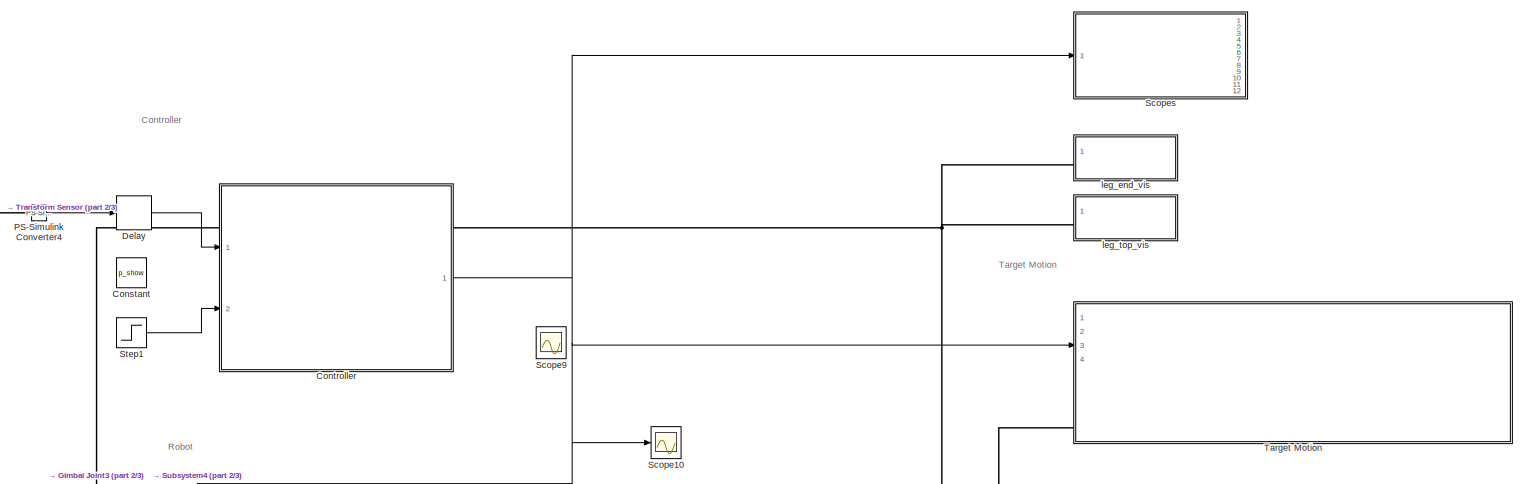
[diagram: root canvas - part 1/3, top center region]
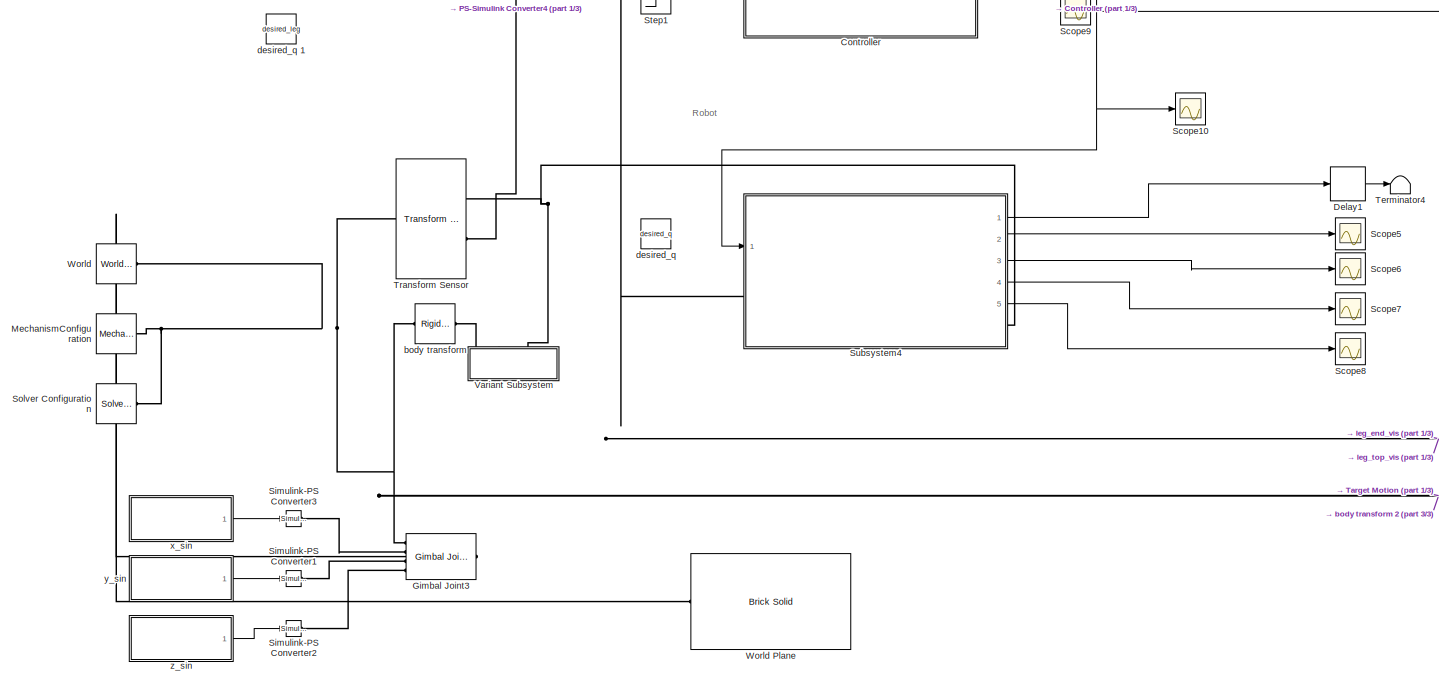
[diagram: root canvas - part 2/3, central region]
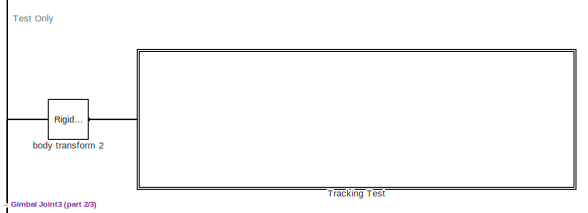
[diagram: root canvas - part 3/3, middle right region]
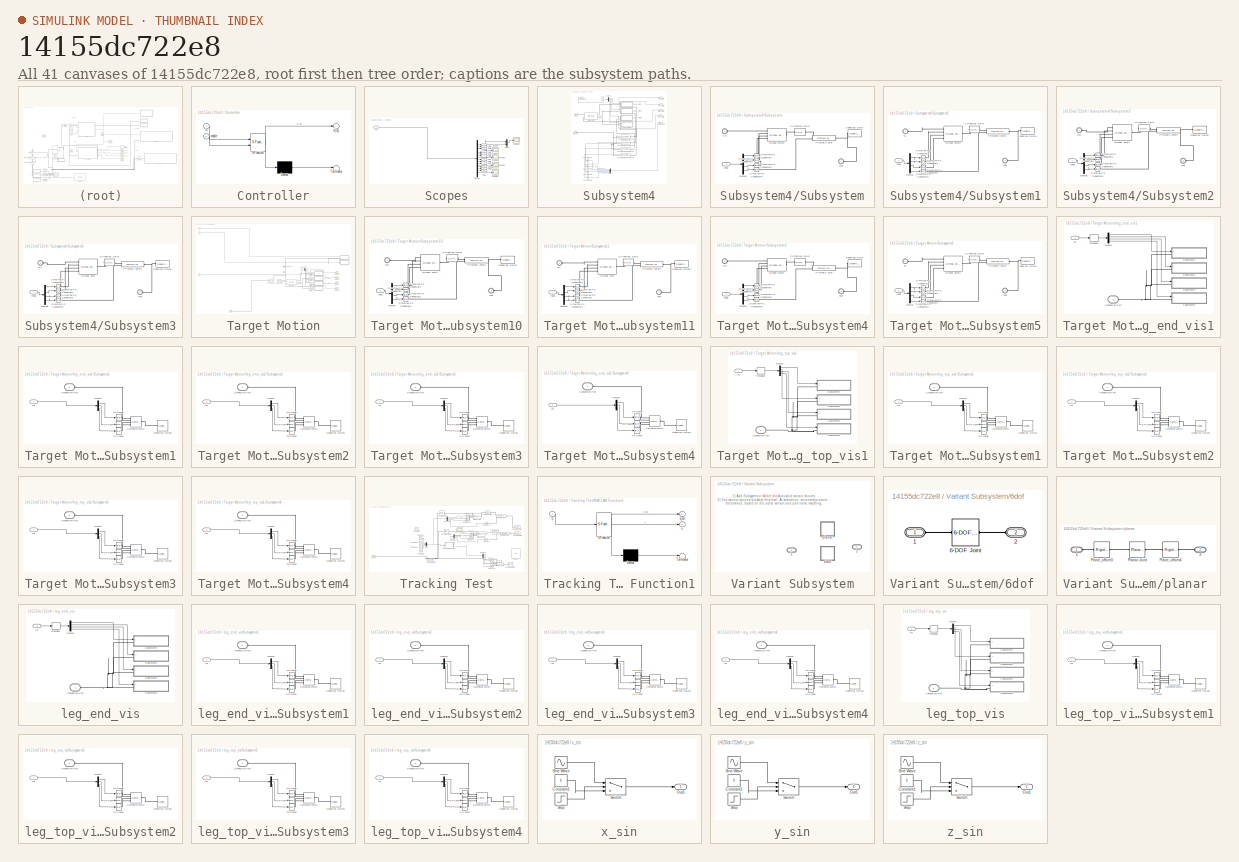
[diagram: thumbnail index - all 41 canvases of the model, root first then tree order]
MODEL slx_14155dc722e8
KIND model
CONFIG AbsTol = auto
CONFIG EnableMultiTasking = off
CONFIG FixedStep = Ts
CONFIG InitFcn = robot_balancing_init
CONFIG MaxStep = auto
CONFIG MinStep = auto
CONFIG RelTol = 1e-3
CONFIG SampleTimeConstraint = Unconstrained
CONFIG Solver = ode4
CONFIG SolverName = ode4
CONFIG StartTime = 0.0
CONFIG StopTime = 10
BLOCK [Constant] Constant
  Value = p_show
BLOCK [SubSystem] Controller
  ErrorFcn = Stateflow.Translate.translate
  PermitHierarchicalResolution = ExplicitOnly
  Ports = [2, 1]
  RequestExecContextInheritance = off
  SFBlockType = MATLAB Function
  TreatAsAtomicUnit = on
BLOCK [Demux] Controller/ Demux 
  Outputs = 1
  Ports = [1, 1]
BLOCK [S-Function] Controller/ SFunction 
  EnableBusSupport = on
  FunctionName = sf_sfun
  Parameters = desired_q,gain
  PortCounts = [2 2]
  Ports = [2, 2]
  SFcnIsStateOwnerBlock = off
  SFunctionDeploymentMode = off
  Tag = Stateflow S-Function 1
BLOCK [Terminator] Controller/ Terminator 
BLOCK [Inport] Controller/R
  IconDisplay = Port number
BLOCK [Outport] Controller/d_leg
  IconDisplay = Port number
BLOCK [Inport] Controller/enable
  IconDisplay = Port number
  Port = 2
BLOCK [Delay] Delay
  DelayLength = 1
  InputPortMap = u0
  Ports = [1, 1]
BLOCK [Delay] Delay1
  DelayLength = 1
  InputPortMap = u0
  Ports = [1, 1]
BLOCK [Reference] Gimbal Joint3  REF=sm_lib/Joints/Gimbal Joint
  Ports = [0, 0, 0, 0, 0, 4, 1]
  SourceBlock = sm_lib/Joints/Gimbal Joint
  SourceProductBaseCode = MS
  SourceProductName = Simscape Multibody
  SourceType = Gimbal Joint
BLOCK [Reference] MechanismConfiguration  REF=sm_lib/Utilities/Mechanism
Configuration
  Ports = [0, 0, 0, 0, 0, 0, 1]
  SourceBlock = sm_lib/Utilities/Mechanism\nConfiguration
  SourceProductBaseCode = MS
  SourceProductName = Simscape Multibody
  SourceType = Mechanism\nConfiguration
BLOCK [Reference] PS-Simulink Converter4  REF=nesl_utility/PS-Simulink
Converter
  Ports = [0, 1, 0, 0, 0, 1]
  SourceBlock = nesl_utility/PS-Simulink\nConverter
  SourceProductBaseCode = SS
  SourceProductName = Simscape
  SourceType = PS-Simulink\nConverter
BLOCK [Scope] Scope10
  Floating = off
  NumInputPorts = 1
  Ports = [1]
  ScopeSpecificationString = Simulink.scopes.TimeScopeBlockCfg('CurrentConfiguration', extmgr.ConfigurationSet(extmgr.Configuration('Core','General UI',true),extmgr.Configuration('Core','Source UI',true),extmgr.Configuration('Sources','WiredSimulink',true,'DataLoggingVariableName','ScopeData2'),extmgr.Configuration('Visuals','Time Domain',true,'SerializedDisplays',{struct('MinYLimReal','-3.92677','MaxYLimReal','3.92674','YLab...<+1649ch>
BLOCK [Scope] Scope5
  Floating = off
  NumInputPorts = 1
  Ports = [1]
  ScopeSpecificationString = Simulink.scopes.TimeScopeBlockCfg('CurrentConfiguration', extmgr.ConfigurationSet(extmgr.Configuration('Core','General UI',true),extmgr.Configuration('Core','Source UI',true),extmgr.Configuration('Sources','WiredSimulink',true,'DataLoggingVariableName','ScopeData5'),extmgr.Configuration('Visuals','Time Domain',true,'SerializedDisplays',{struct('MinYLimReal','-0.0879','MaxYLimReal','0.79111','YLabe...<+1591ch>
BLOCK [Scope] Scope6
  Floating = off
  NumInputPorts = 1
  Ports = [1]
  ScopeSpecificationString = Simulink.scopes.TimeScopeBlockCfg('CurrentConfiguration', extmgr.ConfigurationSet(extmgr.Configuration('Core','General UI',true),extmgr.Configuration('Core','Source UI',true),extmgr.Configuration('Sources','WiredSimulink',true,'DataLoggingVariableName','ScopeData6'),extmgr.Configuration('Visuals','Time Domain',true,'SerializedDisplays',{struct('MinYLimReal','-0.10864','MaxYLimReal','0.97774','YLab...<+1594ch>
BLOCK [Scope] Scope7
  Floating = off
  NumInputPorts = 1
  Ports = [1]
  ScopeSpecificationString = Simulink.scopes.TimeScopeBlockCfg('CurrentConfiguration', extmgr.ConfigurationSet(extmgr.Configuration('Core','General UI',true),extmgr.Configuration('Core','Source UI',true),extmgr.Configuration('Sources','WiredSimulink',true,'DataLoggingVariableName','ScopeData7'),extmgr.Configuration('Visuals','Time Domain',true,'SerializedDisplays',{struct('MinYLimReal','-0.075','MaxYLimReal','0.675','YLabelRe...<+1581ch>
BLOCK [Scope] Scope8
  Floating = off
  NumInputPorts = 1
  Ports = [1]
  ScopeSpecificationString = Simulink.scopes.TimeScopeBlockCfg('CurrentConfiguration', extmgr.ConfigurationSet(extmgr.Configuration('Core','General UI',true),extmgr.Configuration('Core','Source UI',true),extmgr.Configuration('Sources','WiredSimulink',true,'DataLoggingVariableName','ScopeData8'),extmgr.Configuration('Visuals','Time Domain',true,'SerializedDisplays',{struct('MinYLimReal','-0.08614','MaxYLimReal','0.77525','YLab...<+1594ch>
BLOCK [Scope] Scope9
  Floating = off
  NumInputPorts = 1
  Ports = [1]
  ScopeSpecificationString = Simulink.scopes.TimeScopeBlockCfg('CurrentConfiguration', extmgr.ConfigurationSet(extmgr.Configuration('Core','General UI',true),extmgr.Configuration('Core','Source UI',true),extmgr.Configuration('Sources','WiredSimulink',true,'DataLoggingVariableName','ScopeData1'),extmgr.Configuration('Visuals','Time Domain',true,'SerializedDisplays',{struct('MinYLimReal','-3.92672','MaxYLimReal','3.92678','YLab...<+1465ch>
BLOCK [SubSystem] Scopes
  Commented = on
  Ports = [1, 12]
  RequestExecContextInheritance = off
BLOCK [Demux] Scopes/Demux1
  DisplayOption = bar
  Outputs = 16
  Ports = [1, 16]
BLOCK [Inport] Scopes/In1
  IconDisplay = Port number
BLOCK [Mux] Scopes/Mux1
  DisplayOption = bar
  Inputs = 2
  Ports = [2, 1]
BLOCK [Outport] Scopes/Out1
  IconDisplay = Port number
BLOCK [Outport] Scopes/Out10
  IconDisplay = Port number
  Port = 10
BLOCK [Outport] Scopes/Out11
  IconDisplay = Port number
  Port = 11
BLOCK [Outport] Scopes/Out12
  IconDisplay = Port number
  Port = 12
BLOCK [Outport] Scopes/Out2
  IconDisplay = Port number
  Port = 2
BLOCK [Outport] Scopes/Out3
  IconDisplay = Port number
  Port = 3
BLOCK [Outport] Scopes/Out4
  IconDisplay = Port number
  Port = 4
BLOCK [Outport] Scopes/Out5
  IconDisplay = Port number
  Port = 5
BLOCK [Outport] Scopes/Out6
  IconDisplay = Port number
  Port = 6
BLOCK [Outport] Scopes/Out7
  IconDisplay = Port number
  Port = 7
BLOCK [Outport] Scopes/Out8
  IconDisplay = Port number
  Port = 8
BLOCK [Outport] Scopes/Out9
  IconDisplay = Port number
  Port = 9
BLOCK [Scope] Scopes/Scope
  Floating = off
  NumInputPorts = 1
  Ports = [1]
  ScopeSpecificationString = Simulink.scopes.TimeScopeBlockCfg('CurrentConfiguration', extmgr.ConfigurationSet(extmgr.Configuration('Core','General UI',true),extmgr.Configuration('Core','Source UI',true),extmgr.Configuration('Sources','WiredSimulink',true),extmgr.Configuration('Visuals','Time Domain',true,'SerializedDisplays',{struct('MinYLimReal','-0.32312','MaxYLimReal','0.68312','YLabelReal','','MinYLimMag','0.00000','MaxY...<+1374ch>
BLOCK [Scope] Scopes/Scope1
  Floating = off
  NumInputPorts = 1
  Ports = [1]
  ScopeSpecificationString = Simulink.scopes.TimeScopeBlockCfg('CurrentConfiguration', extmgr.ConfigurationSet(extmgr.Configuration('Core','General UI',true),extmgr.Configuration('Core','Source UI',true),extmgr.Configuration('Sources','WiredSimulink',true,'DataLoggingVariableName','ScopeData7'),extmgr.Configuration('Visuals','Time Domain',true,'SerializedDisplays',{struct('MinYLimReal','-0.32312','MaxYLimReal','0.68312','YLab...<+1424ch>
BLOCK [Scope] Scopes/Scope2
  Floating = off
  NumInputPorts = 1
  Ports = [1]
  ScopeSpecificationString = Simulink.scopes.TimeScopeBlockCfg('CurrentConfiguration', extmgr.ConfigurationSet(extmgr.Configuration('Core','General UI',true),extmgr.Configuration('Core','Source UI',true),extmgr.Configuration('Sources','WiredSimulink',true,'DataLoggingVariableName','ScopeData2'),extmgr.Configuration('Visuals','Time Domain',true,'SerializedDisplays',{struct('MinYLimReal','-0.32312','MaxYLimReal','0.68312','YLab...<+1413ch>
BLOCK [Scope] Scopes/Scope3
  Floating = off
  NumInputPorts = 1
  Ports = [1]
  ScopeSpecificationString = Simulink.scopes.TimeScopeBlockCfg('CurrentConfiguration', extmgr.ConfigurationSet(extmgr.Configuration('Core','General UI',true),extmgr.Configuration('Core','Source UI',true),extmgr.Configuration('Sources','WiredSimulink',true,'DataLoggingVariableName','ScopeData3'),extmgr.Configuration('Visuals','Time Domain',true,'SerializedDisplays',{struct('MinYLimReal','-0.07979','MaxYLimReal','0.04473','YLab...<+1449ch>
BLOCK [Scope] Scopes/Scope4
  Floating = off
  NumInputPorts = 1
  Ports = [1]
  ScopeSpecificationString = Simulink.scopes.TimeScopeBlockCfg('CurrentConfiguration', extmgr.ConfigurationSet(extmgr.Configuration('Core','General UI',true),extmgr.Configuration('Core','Source UI',true),extmgr.Configuration('Sources','WiredSimulink',true,'DataLoggingVariableName','ScopeData4'),extmgr.Configuration('Visuals','Time Domain',true,'SerializedDisplays',{struct('MinYLimReal','-0.07979','MaxYLimReal','0.04473','YLab...<+1449ch>
BLOCK [Reference] Simulink-PS Converter1  REF=nesl_utility/Simulink-PS
Converter
  Ports = [1, 0, 0, 0, 0, 0, 1]
  SourceBlock = nesl_utility/Simulink-PS\nConverter
  SourceProductBaseCode = SS
  SourceProductName = Simscape
  SourceType = Simulink-PS\nConverter
BLOCK [Reference] Simulink-PS Converter2  REF=nesl_utility/Simulink-PS
Converter
  Ports = [1, 0, 0, 0, 0, 0, 1]
  SourceBlock = nesl_utility/Simulink-PS\nConverter
  SourceProductBaseCode = SS
  SourceProductName = Simscape
  SourceType = Simulink-PS\nConverter
BLOCK [Reference] Simulink-PS Converter3  REF=nesl_utility/Simulink-PS
Converter
  Ports = [1, 0, 0, 0, 0, 0, 1]
  SourceBlock = nesl_utility/Simulink-PS\nConverter
  SourceProductBaseCode = SS
  SourceProductName = Simscape
  SourceType = Simulink-PS\nConverter
BLOCK [Reference] Solver Configuration  REF=nesl_utility/Solver
Configuration
  Ports = [0, 0, 0, 0, 0, 0, 1]
  SourceBlock = nesl_utility/Solver\nConfiguration
  SourceProductBaseCode = SS
  SourceProductName = Simscape
  SourceType = Solver\nConfiguration
BLOCK [Step] Step1
  SampleTime = 0
  Time = 2
BLOCK [SubSystem] Subsystem4
  Ports = [1, 5, 0, 0, 0, 1, 1]
  RequestExecContextInheritance = off
BLOCK [Outport] Subsystem4/BL control
  IconDisplay = Port number
  Port = 5
BLOCK [Outport] Subsystem4/BR control
  IconDisplay = Port number
  Port = 4
BLOCK [PMIOPort] Subsystem4/Body
  Side = Right
BLOCK [Reference] Subsystem4/Brick Solid  REF=sm_lib/Body Elements/Brick Solid
  Ports = [0, 0, 0, 0, 0, 3, 2]
  SourceBlock = sm_lib/Body Elements/Brick Solid
  SourceProductBaseCode = MS
  SourceProductName = Simscape Multibody
  SourceType = Brick Solid
BLOCK [BusSelector] Subsystem4/Bus Selector
  OutputAsBus = off
  OutputSignals = Normal Force
  Ports = [1, 1]
BLOCK [BusSelector] Subsystem4/Bus Selector1
  OutputAsBus = off
  OutputSignals = Normal Force
  Ports = [1, 1]
BLOCK [BusSelector] Subsystem4/Bus Selector2
  OutputAsBus = off
  OutputSignals = Normal Force
  Ports = [1, 1]
BLOCK [BusSelector] Subsystem4/Bus Selector3
  OutputAsBus = off
  OutputSignals = Normal Force
  Ports = [1, 1]
BLOCK [Inport] Subsystem4/Control_Input
  IconDisplay = Port number
BLOCK [Demux] Subsystem4/Demux
  DisplayOption = bar
  Ports = [1, 4]
BLOCK [Outport] Subsystem4/FL control
  IconDisplay = Port number
  Port = 3
BLOCK [Outport] Subsystem4/FRcontrol
  IconDisplay = Port number
  Port = 2
BLOCK [PMIOPort] Subsystem4/Ground
  Port = 2
  Side = Left
BLOCK [Mux] Subsystem4/Mux
  DisplayOption = bar
  Ports = [4, 1]
BLOCK [Outport] Subsystem4/Normal Force
  IconDisplay = Port number
BLOCK [Reference] Subsystem4/Sphere to Plane Force FR  REF=Contact_Forces_Lib/3D/Sphere to Plane Force
  Ports = [0, 1, 0, 0, 0, 1, 1]
  SourceBlock = Contact_Forces_Lib/3D/Sphere to Plane Force
  SourceProductName = Simscape Multibody Contact Forces Library
  SourceType = Sphere to Plane Force
BLOCK [Reference] Subsystem4/Sphere to Plane Force FR1  REF=Contact_Forces_Lib/3D/Sphere to Plane Force
  Ports = [0, 1, 0, 0, 0, 1, 1]
  SourceBlock = Contact_Forces_Lib/3D/Sphere to Plane Force
  SourceProductName = Simscape Multibody Contact Forces Library
  SourceType = Sphere to Plane Force
BLOCK [Reference] Subsystem4/Sphere to Plane Force FR2  REF=Contact_Forces_Lib/3D/Sphere to Plane Force
  Ports = [0, 1, 0, 0, 0, 1, 1]
  SourceBlock = Contact_Forces_Lib/3D/Sphere to Plane Force
  SourceProductName = Simscape Multibody Contact Forces Library
  SourceType = Sphere to Plane Force
BLOCK [Reference] Subsystem4/Sphere to Plane Force FR3  REF=Contact_Forces_Lib/3D/Sphere to Plane Force
  Ports = [0, 1, 0, 0, 0, 1, 1]
  SourceBlock = Contact_Forces_Lib/3D/Sphere to Plane Force
  SourceProductName = Simscape Multibody Contact Forces Library
  SourceType = Sphere to Plane Force
BLOCK [SubSystem] Subsystem4/Subsystem
  Ports = [1, 0, 0, 0, 0, 2]
  RequestExecContextInheritance = off
BLOCK [Reference] Subsystem4/Subsystem/Cylindrical Solid  REF=sm_lib/Body Elements/Cylindrical Solid
  Ports = [0, 0, 0, 0, 0, 1, 1]
  SourceBlock = sm_lib/Body Elements/Cylindrical Solid
  SourceProductBaseCode = MS
  SourceProductName = Simscape Multibody
  SourceType = Cylindrical Solid
BLOCK [Demux] Subsystem4/Subsystem/Demux
  DisplayOption = bar
  Ports = [1, 4]
BLOCK [PMIOPort] Subsystem4/Subsystem/FR 
  Side = Left
BLOCK [Reference] Subsystem4/Subsystem/Gimbal Joint3  REF=sm_lib/Joints/Gimbal Joint
  Ports = [0, 0, 0, 0, 0, 4, 1]
  SourceBlock = sm_lib/Joints/Gimbal Joint
  SourceProductBaseCode = MS
  SourceProductName = Simscape Multibody
  SourceType = Gimbal Joint
BLOCK [Inport] Subsystem4/Subsystem/Input
  IconDisplay = Port number
BLOCK [Reference] Subsystem4/Subsystem/Prismatic Joint  REF=sm_lib/Joints/Prismatic
Joint
  Ports = [0, 0, 0, 0, 0, 2, 1]
  SourceBlock = sm_lib/Joints/Prismatic\nJoint
  SourceProductBaseCode = MS
  SourceProductName = Simscape Multibody
  SourceType = Prismatic\nJoint
BLOCK [Reference] Subsystem4/Subsystem/Simulink-PS Converter1  REF=nesl_utility/Simulink-PS
Converter
  Ports = [1, 0, 0, 0, 0, 0, 1]
  SourceBlock = nesl_utility/Simulink-PS\nConverter
  SourceProductBaseCode = SS
  SourceProductName = Simscape
  SourceType = Simulink-PS\nConverter
BLOCK [Reference] Subsystem4/Subsystem/Simulink-PS Converter2  REF=nesl_utility/Simulink-PS
Converter
  Ports = [1, 0, 0, 0, 0, 0, 1]
  SourceBlock = nesl_utility/Simulink-PS\nConverter
  SourceProductBaseCode = SS
  SourceProductName = Simscape
  SourceType = Simulink-PS\nConverter
BLOCK [Reference] Subsystem4/Subsystem/Simulink-PS Converter3  REF=nesl_utility/Simulink-PS
Converter
  Ports = [1, 0, 0, 0, 0, 0, 1]
  SourceBlock = nesl_utility/Simulink-PS\nConverter
  SourceProductBaseCode = SS
  SourceProductName = Simscape
  SourceType = Simulink-PS\nConverter
BLOCK [Reference] Subsystem4/Subsystem/Simulink-PS Converter4  REF=nesl_utility/Simulink-PS
Converter
  Ports = [1, 0, 0, 0, 0, 0, 1]
  SourceBlock = nesl_utility/Simulink-PS\nConverter
  SourceProductBaseCode = SS
  SourceProductName = Simscape
  SourceType = Simulink-PS\nConverter
BLOCK [Reference] Subsystem4/Subsystem/Spherical Solid  REF=sm_lib/Body Elements/Spherical Solid
  Ports = [0, 0, 0, 0, 0, 0, 1]
  SourceBlock = sm_lib/Body Elements/Spherical Solid
  SourceProductBaseCode = MS
  SourceProductName = Simscape Multibody
  SourceType = Spherical Solid
BLOCK [PMIOPort] Subsystem4/Subsystem/foot
  Port = 2
  Side = Left
BLOCK [SubSystem] Subsystem4/Subsystem1
  Ports = [1, 0, 0, 0, 0, 2]
  RequestExecContextInheritance = off
BLOCK [Reference] Subsystem4/Subsystem1/Cylindrical Solid  REF=sm_lib/Body Elements/Cylindrical Solid
  Ports = [0, 0, 0, 0, 0, 1, 1]
  SourceBlock = sm_lib/Body Elements/Cylindrical Solid
  SourceProductBaseCode = MS
  SourceProductName = Simscape Multibody
  SourceType = Cylindrical Solid
BLOCK [Demux] Subsystem4/Subsystem1/Demux
  DisplayOption = bar
  Ports = [1, 4]
BLOCK [PMIOPort] Subsystem4/Subsystem1/FL 
  Side = Left
BLOCK [Reference] Subsystem4/Subsystem1/Gimbal Joint2  REF=sm_lib/Joints/Gimbal Joint
  Ports = [0, 0, 0, 0, 0, 4, 1]
  SourceBlock = sm_lib/Joints/Gimbal Joint
  SourceProductBaseCode = MS
  SourceProductName = Simscape Multibody
  SourceType = Gimbal Joint
BLOCK [Inport] Subsystem4/Subsystem1/Input
  IconDisplay = Port number
BLOCK [Reference] Subsystem4/Subsystem1/Prismatic Joint1  REF=sm_lib/Joints/Prismatic
Joint
  Ports = [0, 0, 0, 0, 0, 2, 1]
  SourceBlock = sm_lib/Joints/Prismatic\nJoint
  SourceProductBaseCode = MS
  SourceProductName = Simscape Multibody
  SourceType = Prismatic\nJoint
BLOCK [Reference] Subsystem4/Subsystem1/Simulink-PS Converter1  REF=nesl_utility/Simulink-PS
Converter
  Ports = [1, 0, 0, 0, 0, 0, 1]
  SourceBlock = nesl_utility/Simulink-PS\nConverter
  SourceProductBaseCode = SS
  SourceProductName = Simscape
  SourceType = Simulink-PS\nConverter
BLOCK [Reference] Subsystem4/Subsystem1/Simulink-PS Converter2  REF=nesl_utility/Simulink-PS
Converter
  Ports = [1, 0, 0, 0, 0, 0, 1]
  SourceBlock = nesl_utility/Simulink-PS\nConverter
  SourceProductBaseCode = SS
  SourceProductName = Simscape
  SourceType = Simulink-PS\nConverter
BLOCK [Reference] Subsystem4/Subsystem1/Simulink-PS Converter3  REF=nesl_utility/Simulink-PS
Converter
  Ports = [1, 0, 0, 0, 0, 0, 1]
  SourceBlock = nesl_utility/Simulink-PS\nConverter
  SourceProductBaseCode = SS
  SourceProductName = Simscape
  SourceType = Simulink-PS\nConverter
BLOCK [Reference] Subsystem4/Subsystem1/Simulink-PS Converter4  REF=nesl_utility/Simulink-PS
Converter
  Ports = [1, 0, 0, 0, 0, 0, 1]
  SourceBlock = nesl_utility/Simulink-PS\nConverter
  SourceProductBaseCode = SS
  SourceProductName = Simscape
  SourceType = Simulink-PS\nConverter
BLOCK [Reference] Subsystem4/Subsystem1/Spherical Solid1  REF=sm_lib/Body Elements/Spherical Solid
  Ports = [0, 0, 0, 0, 0, 0, 1]
  SourceBlock = sm_lib/Body Elements/Spherical Solid
  SourceProductBaseCode = MS
  SourceProductName = Simscape Multibody
  SourceType = Spherical Solid
BLOCK [PMIOPort] Subsystem4/Subsystem1/foot
  Port = 2
  Side = Left
BLOCK [SubSystem] Subsystem4/Subsystem2
  Ports = [1, 0, 0, 0, 0, 2]
  RequestExecContextInheritance = off
BLOCK [PMIOPort] Subsystem4/Subsystem2/BR 
  Side = Left
BLOCK [Reference] Subsystem4/Subsystem2/Cylindrical Solid  REF=sm_lib/Body Elements/Cylindrical Solid
  Ports = [0, 0, 0, 0, 0, 1, 1]
  SourceBlock = sm_lib/Body Elements/Cylindrical Solid
  SourceProductBaseCode = MS
  SourceProductName = Simscape Multibody
  SourceType = Cylindrical Solid
BLOCK [Demux] Subsystem4/Subsystem2/Demux
  DisplayOption = bar
  Ports = [1, 4]
BLOCK [Reference] Subsystem4/Subsystem2/Gimbal Joint1  REF=sm_lib/Joints/Gimbal Joint
  Ports = [0, 0, 0, 0, 0, 4, 1]
  SourceBlock = sm_lib/Joints/Gimbal Joint
  SourceProductBaseCode = MS
  SourceProductName = Simscape Multibody
  SourceType = Gimbal Joint
BLOCK [Inport] Subsystem4/Subsystem2/Input
  IconDisplay = Port number
BLOCK [Reference] Subsystem4/Subsystem2/Prismatic Joint2  REF=sm_lib/Joints/Prismatic
Joint
  Ports = [0, 0, 0, 0, 0, 2, 1]
  SourceBlock = sm_lib/Joints/Prismatic\nJoint
  SourceProductBaseCode = MS
  SourceProductName = Simscape Multibody
  SourceType = Prismatic\nJoint
BLOCK [Reference] Subsystem4/Subsystem2/Simulink-PS Converter1  REF=nesl_utility/Simulink-PS
Converter
  Ports = [1, 0, 0, 0, 0, 0, 1]
  SourceBlock = nesl_utility/Simulink-PS\nConverter
  SourceProductBaseCode = SS
  SourceProductName = Simscape
  SourceType = Simulink-PS\nConverter
BLOCK [Reference] Subsystem4/Subsystem2/Simulink-PS Converter2  REF=nesl_utility/Simulink-PS
Converter
  Ports = [1, 0, 0, 0, 0, 0, 1]
  SourceBlock = nesl_utility/Simulink-PS\nConverter
  SourceProductBaseCode = SS
  SourceProductName = Simscape
  SourceType = Simulink-PS\nConverter
BLOCK [Reference] Subsystem4/Subsystem2/Simulink-PS Converter3  REF=nesl_utility/Simulink-PS
Converter
  Ports = [1, 0, 0, 0, 0, 0, 1]
  SourceBlock = nesl_utility/Simulink-PS\nConverter
  SourceProductBaseCode = SS
  SourceProductName = Simscape
  SourceType = Simulink-PS\nConverter
BLOCK [Reference] Subsystem4/Subsystem2/Simulink-PS Converter4  REF=nesl_utility/Simulink-PS
Converter
  Ports = [1, 0, 0, 0, 0, 0, 1]
  SourceBlock = nesl_utility/Simulink-PS\nConverter
  SourceProductBaseCode = SS
  SourceProductName = Simscape
  SourceType = Simulink-PS\nConverter
BLOCK [Reference] Subsystem4/Subsystem2/Spherical Solid2  REF=sm_lib/Body Elements/Spherical Solid
  Ports = [0, 0, 0, 0, 0, 0, 1]
  SourceBlock = sm_lib/Body Elements/Spherical Solid
  SourceProductBaseCode = MS
  SourceProductName = Simscape Multibody
  SourceType = Spherical Solid
BLOCK [PMIOPort] Subsystem4/Subsystem2/foot
  Port = 2
  Side = Left
BLOCK [SubSystem] Subsystem4/Subsystem3
  Ports = [1, 0, 0, 0, 0, 2]
  RequestExecContextInheritance = off
BLOCK [PMIOPort] Subsystem4/Subsystem3/BL 
  Side = Left
BLOCK [Reference] Subsystem4/Subsystem3/Cylindrical Solid  REF=sm_lib/Body Elements/Cylindrical Solid
  Ports = [0, 0, 0, 0, 0, 1, 1]
  SourceBlock = sm_lib/Body Elements/Cylindrical Solid
  SourceProductBaseCode = MS
  SourceProductName = Simscape Multibody
  SourceType = Cylindrical Solid
BLOCK [Demux] Subsystem4/Subsystem3/Demux
  DisplayOption = bar
  Ports = [1, 4]
BLOCK [Reference] Subsystem4/Subsystem3/Gimbal Joint  REF=sm_lib/Joints/Gimbal Joint
  Ports = [0, 0, 0, 0, 0, 4, 1]
  SourceBlock = sm_lib/Joints/Gimbal Joint
  SourceProductBaseCode = MS
  SourceProductName = Simscape Multibody
  SourceType = Gimbal Joint
BLOCK [Inport] Subsystem4/Subsystem3/Input
  IconDisplay = Port number
BLOCK [Reference] Subsystem4/Subsystem3/Prismatic Joint3  REF=sm_lib/Joints/Prismatic
Joint
  Ports = [0, 0, 0, 0, 0, 2, 1]
  SourceBlock = sm_lib/Joints/Prismatic\nJoint
  SourceProductBaseCode = MS
  SourceProductName = Simscape Multibody
  SourceType = Prismatic\nJoint
BLOCK [Reference] Subsystem4/Subsystem3/Simulink-PS Converter1  REF=nesl_utility/Simulink-PS
Converter
  Ports = [1, 0, 0, 0, 0, 0, 1]
  SourceBlock = nesl_utility/Simulink-PS\nConverter
  SourceProductBaseCode = SS
  SourceProductName = Simscape
  SourceType = Simulink-PS\nConverter
BLOCK [Reference] Subsystem4/Subsystem3/Simulink-PS Converter2  REF=nesl_utility/Simulink-PS
Converter
  Ports = [1, 0, 0, 0, 0, 0, 1]
  SourceBlock = nesl_utility/Simulink-PS\nConverter
  SourceProductBaseCode = SS
  SourceProductName = Simscape
  SourceType = Simulink-PS\nConverter
BLOCK [Reference] Subsystem4/Subsystem3/Simulink-PS Converter3  REF=nesl_utility/Simulink-PS
Converter
  Ports = [1, 0, 0, 0, 0, 0, 1]
  SourceBlock = nesl_utility/Simulink-PS\nConverter
  SourceProductBaseCode = SS
  SourceProductName = Simscape
  SourceType = Simulink-PS\nConverter
BLOCK [Reference] Subsystem4/Subsystem3/Simulink-PS Converter4  REF=nesl_utility/Simulink-PS
Converter
  Ports = [1, 0, 0, 0, 0, 0, 1]
  SourceBlock = nesl_utility/Simulink-PS\nConverter
  SourceProductBaseCode = SS
  SourceProductName = Simscape
  SourceType = Simulink-PS\nConverter
BLOCK [Reference] Subsystem4/Subsystem3/Spherical Solid3  REF=sm_lib/Body Elements/Spherical Solid
  Ports = [0, 0, 0, 0, 0, 0, 1]
  SourceBlock = sm_lib/Body Elements/Spherical Solid
  SourceProductBaseCode = MS
  SourceProductName = Simscape Multibody
  SourceType = Spherical Solid
BLOCK [PMIOPort] Subsystem4/Subsystem3/foot
  Port = 2
  Side = Left
BLOCK [Sum] Subsystem4/Sum
  IconShape = round
  InputSameDT = off
  Inputs = |++
  OutDataTypeStr = Inherit: Inherit via internal rule
  Ports = [2, 1]
  SaturateOnIntegerOverflow = off
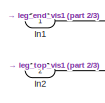
[diagram: Target Motion - part 1/3, top left region]
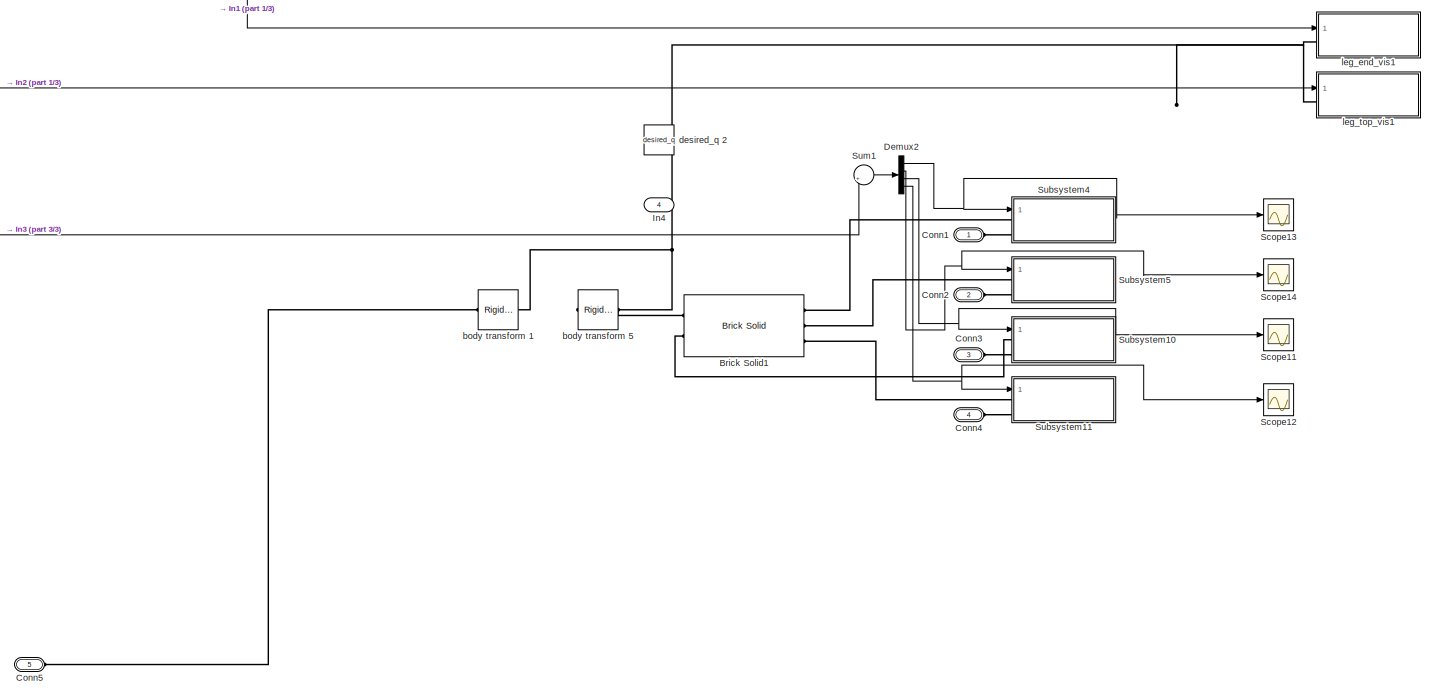
[diagram: Target Motion - part 2/3, full width, middle band]
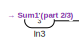
[diagram: Target Motion - part 3/3, middle left region]
BLOCK [SubSystem] Target Motion
  Commented = on
  Ports = [4, 0, 0, 0, 0, 5]
  RequestExecContextInheritance = off
BLOCK [Reference] Target Motion/Brick Solid1  REF=sm_lib/Body Elements/Brick Solid
  Ports = [0, 0, 0, 0, 0, 3, 2]
  SourceBlock = sm_lib/Body Elements/Brick Solid
  SourceProductBaseCode = MS
  SourceProductName = Simscape Multibody
  SourceType = Brick Solid
BLOCK [PMIOPort] Target Motion/Conn1
  Side = Left
BLOCK [PMIOPort] Target Motion/Conn2
  Port = 2
  Side = Left
BLOCK [PMIOPort] Target Motion/Conn3
  Port = 3
  Side = Left
BLOCK [PMIOPort] Target Motion/Conn4
  Port = 4
  Side = Left
BLOCK [PMIOPort] Target Motion/Conn5
  Port = 5
  Side = Left
BLOCK [Demux] Target Motion/Demux2
  DisplayOption = bar
  Ports = [1, 4]
BLOCK [Inport] Target Motion/In1
  IconDisplay = Port number
BLOCK [Inport] Target Motion/In2
  IconDisplay = Port number
  Port = 2
BLOCK [Inport] Target Motion/In3
  IconDisplay = Port number
  Port = 3
BLOCK [Inport] Target Motion/In4
  IconDisplay = Port number
  Port = 4
BLOCK [Scope] Target Motion/Scope11
  Floating = off
  NumInputPorts = 1
  Ports = [1]
  ScopeSpecificationString = Simulink.scopes.TimeScopeBlockCfg('CurrentConfiguration', extmgr.ConfigurationSet(extmgr.Configuration('Core','General UI',true),extmgr.Configuration('Core','Source UI',true),extmgr.Configuration('Sources','WiredSimulink',true,'DataLoggingVariableName','ScopeData3'),extmgr.Configuration('Visuals','Time Domain',true,'SerializedDisplays',{struct('MinYLimReal','-0.075','MaxYLimReal','0.675','YLabelRe...<+1584ch>
BLOCK [Scope] Target Motion/Scope12
  Floating = off
  NumInputPorts = 1
  Ports = [1]
  ScopeSpecificationString = Simulink.scopes.TimeScopeBlockCfg('CurrentConfiguration', extmgr.ConfigurationSet(extmgr.Configuration('Core','General UI',true),extmgr.Configuration('Core','Source UI',true),extmgr.Configuration('Sources','WiredSimulink',true,'DataLoggingVariableName','ScopeData4'),extmgr.Configuration('Visuals','Time Domain',true,'SerializedDisplays',{struct('MinYLimReal','-0.075','MaxYLimReal','0.675','YLabelRe...<+1585ch>
BLOCK [Scope] Target Motion/Scope13
  Floating = off
  NumInputPorts = 1
  Ports = [1]
  ScopeSpecificationString = Simulink.scopes.TimeScopeBlockCfg('CurrentConfiguration', extmgr.ConfigurationSet(extmgr.Configuration('Core','General UI',true),extmgr.Configuration('Core','Source UI',true),extmgr.Configuration('Sources','WiredSimulink',true,'DataLoggingVariableName','ScopeData5'),extmgr.Configuration('Visuals','Time Domain',true,'SerializedDisplays',{struct('MinYLimReal','-0.075','MaxYLimReal','0.675','YLabelRe...<+1583ch>
BLOCK [Scope] Target Motion/Scope14
  Floating = off
  NumInputPorts = 1
  Ports = [1]
  ScopeSpecificationString = Simulink.scopes.TimeScopeBlockCfg('CurrentConfiguration', extmgr.ConfigurationSet(extmgr.Configuration('Core','General UI',true),extmgr.Configuration('Core','Source UI',true),extmgr.Configuration('Sources','WiredSimulink',true,'DataLoggingVariableName','ScopeData6'),extmgr.Configuration('Visuals','Time Domain',true,'SerializedDisplays',{struct('MinYLimReal','-0.075','MaxYLimReal','0.675','YLabelRe...<+1586ch>
BLOCK [SubSystem] Target Motion/Subsystem10
  Ports = [1, 0, 0, 0, 0, 2]
  RequestExecContextInheritance = off
BLOCK [PMIOPort] Target Motion/Subsystem10/BR 
  Side = Left
BLOCK [Reference] Target Motion/Subsystem10/Cylindrical Solid  REF=sm_lib/Body Elements/Cylindrical Solid
  Ports = [0, 0, 0, 0, 0, 1, 1]
  SourceBlock = sm_lib/Body Elements/Cylindrical Solid
  SourceProductBaseCode = MS
  SourceProductName = Simscape Multibody
  SourceType = Cylindrical Solid
BLOCK [Demux] Target Motion/Subsystem10/Demux
  DisplayOption = bar
  Ports = [1, 4]
BLOCK [Reference] Target Motion/Subsystem10/Gimbal Joint1  REF=sm_lib/Joints/Gimbal Joint
  Ports = [0, 0, 0, 0, 0, 4, 1]
  SourceBlock = sm_lib/Joints/Gimbal Joint
  SourceProductBaseCode = MS
  SourceProductName = Simscape Multibody
  SourceType = Gimbal Joint
BLOCK [Inport] Target Motion/Subsystem10/Input
  IconDisplay = Port number
BLOCK [Reference] Target Motion/Subsystem10/Prismatic Joint2  REF=sm_lib/Joints/Prismatic
Joint
  Ports = [0, 0, 0, 0, 0, 2, 1]
  SourceBlock = sm_lib/Joints/Prismatic\nJoint
  SourceProductBaseCode = MS
  SourceProductName = Simscape Multibody
  SourceType = Prismatic\nJoint
BLOCK [Reference] Target Motion/Subsystem10/Simulink-PS Converter1  REF=nesl_utility/Simulink-PS
Converter
  Ports = [1, 0, 0, 0, 0, 0, 1]
  SourceBlock = nesl_utility/Simulink-PS\nConverter
  SourceProductBaseCode = SS
  SourceProductName = Simscape
  SourceType = Simulink-PS\nConverter
BLOCK [Reference] Target Motion/Subsystem10/Simulink-PS Converter2  REF=nesl_utility/Simulink-PS
Converter
  Ports = [1, 0, 0, 0, 0, 0, 1]
  SourceBlock = nesl_utility/Simulink-PS\nConverter
  SourceProductBaseCode = SS
  SourceProductName = Simscape
  SourceType = Simulink-PS\nConverter
BLOCK [Reference] Target Motion/Subsystem10/Simulink-PS Converter3  REF=nesl_utility/Simulink-PS
Converter
  Ports = [1, 0, 0, 0, 0, 0, 1]
  SourceBlock = nesl_utility/Simulink-PS\nConverter
  SourceProductBaseCode = SS
  SourceProductName = Simscape
  SourceType = Simulink-PS\nConverter
BLOCK [Reference] Target Motion/Subsystem10/Simulink-PS Converter4  REF=nesl_utility/Simulink-PS
Converter
  Ports = [1, 0, 0, 0, 0, 0, 1]
  SourceBlock = nesl_utility/Simulink-PS\nConverter
  SourceProductBaseCode = SS
  SourceProductName = Simscape
  SourceType = Simulink-PS\nConverter
BLOCK [Reference] Target Motion/Subsystem10/Spherical Solid2  REF=sm_lib/Body Elements/Spherical Solid
  Ports = [0, 0, 0, 0, 0, 0, 1]
  SourceBlock = sm_lib/Body Elements/Spherical Solid
  SourceProductBaseCode = MS
  SourceProductName = Simscape Multibody
  SourceType = Spherical Solid
BLOCK [PMIOPort] Target Motion/Subsystem10/foot
  Port = 2
  Side = Left
BLOCK [SubSystem] Target Motion/Subsystem11
  Ports = [1, 0, 0, 0, 0, 2]
  RequestExecContextInheritance = off
BLOCK [PMIOPort] Target Motion/Subsystem11/BL 
  Side = Left
BLOCK [Reference] Target Motion/Subsystem11/Cylindrical Solid  REF=sm_lib/Body Elements/Cylindrical Solid
  Ports = [0, 0, 0, 0, 0, 1, 1]
  SourceBlock = sm_lib/Body Elements/Cylindrical Solid
  SourceProductBaseCode = MS
  SourceProductName = Simscape Multibody
  SourceType = Cylindrical Solid
BLOCK [Demux] Target Motion/Subsystem11/Demux
  DisplayOption = bar
  Ports = [1, 4]
BLOCK [Reference] Target Motion/Subsystem11/Gimbal Joint  REF=sm_lib/Joints/Gimbal Joint
  Ports = [0, 0, 0, 0, 0, 4, 1]
  SourceBlock = sm_lib/Joints/Gimbal Joint
  SourceProductBaseCode = MS
  SourceProductName = Simscape Multibody
  SourceType = Gimbal Joint
BLOCK [Inport] Target Motion/Subsystem11/Input
  IconDisplay = Port number
BLOCK [Reference] Target Motion/Subsystem11/Prismatic Joint3  REF=sm_lib/Joints/Prismatic
Joint
  Ports = [0, 0, 0, 0, 0, 2, 1]
  SourceBlock = sm_lib/Joints/Prismatic\nJoint
  SourceProductBaseCode = MS
  SourceProductName = Simscape Multibody
  SourceType = Prismatic\nJoint
BLOCK [Reference] Target Motion/Subsystem11/Simulink-PS Converter1  REF=nesl_utility/Simulink-PS
Converter
  Ports = [1, 0, 0, 0, 0, 0, 1]
  SourceBlock = nesl_utility/Simulink-PS\nConverter
  SourceProductBaseCode = SS
  SourceProductName = Simscape
  SourceType = Simulink-PS\nConverter
BLOCK [Reference] Target Motion/Subsystem11/Simulink-PS Converter2  REF=nesl_utility/Simulink-PS
Converter
  Ports = [1, 0, 0, 0, 0, 0, 1]
  SourceBlock = nesl_utility/Simulink-PS\nConverter
  SourceProductBaseCode = SS
  SourceProductName = Simscape
  SourceType = Simulink-PS\nConverter
BLOCK [Reference] Target Motion/Subsystem11/Simulink-PS Converter3  REF=nesl_utility/Simulink-PS
Converter
  Ports = [1, 0, 0, 0, 0, 0, 1]
  SourceBlock = nesl_utility/Simulink-PS\nConverter
  SourceProductBaseCode = SS
  SourceProductName = Simscape
  SourceType = Simulink-PS\nConverter
BLOCK [Reference] Target Motion/Subsystem11/Simulink-PS Converter4  REF=nesl_utility/Simulink-PS
Converter
  Ports = [1, 0, 0, 0, 0, 0, 1]
  SourceBlock = nesl_utility/Simulink-PS\nConverter
  SourceProductBaseCode = SS
  SourceProductName = Simscape
  SourceType = Simulink-PS\nConverter
BLOCK [Reference] Target Motion/Subsystem11/Spherical Solid3  REF=sm_lib/Body Elements/Spherical Solid
  Ports = [0, 0, 0, 0, 0, 0, 1]
  SourceBlock = sm_lib/Body Elements/Spherical Solid
  SourceProductBaseCode = MS
  SourceProductName = Simscape Multibody
  SourceType = Spherical Solid
BLOCK [PMIOPort] Target Motion/Subsystem11/foot
  Port = 2
  Side = Left
BLOCK [SubSystem] Target Motion/Subsystem4
  Ports = [1, 0, 0, 0, 0, 2]
  RequestExecContextInheritance = off
BLOCK [Reference] Target Motion/Subsystem4/Cylindrical Solid  REF=sm_lib/Body Elements/Cylindrical Solid
  Ports = [0, 0, 0, 0, 0, 1, 1]
  SourceBlock = sm_lib/Body Elements/Cylindrical Solid
  SourceProductBaseCode = MS
  SourceProductName = Simscape Multibody
  SourceType = Cylindrical Solid
BLOCK [Demux] Target Motion/Subsystem4/Demux
  DisplayOption = bar
  Ports = [1, 4]
BLOCK [PMIOPort] Target Motion/Subsystem4/FR 
  Side = Left
BLOCK [Reference] Target Motion/Subsystem4/Gimbal Joint3  REF=sm_lib/Joints/Gimbal Joint
  Ports = [0, 0, 0, 0, 0, 4, 1]
  SourceBlock = sm_lib/Joints/Gimbal Joint
  SourceProductBaseCode = MS
  SourceProductName = Simscape Multibody
  SourceType = Gimbal Joint
BLOCK [Inport] Target Motion/Subsystem4/Input
  IconDisplay = Port number
BLOCK [Reference] Target Motion/Subsystem4/Prismatic Joint  REF=sm_lib/Joints/Prismatic
Joint
  Ports = [0, 0, 0, 0, 0, 2, 1]
  SourceBlock = sm_lib/Joints/Prismatic\nJoint
  SourceProductBaseCode = MS
  SourceProductName = Simscape Multibody
  SourceType = Prismatic\nJoint
BLOCK [Reference] Target Motion/Subsystem4/Simulink-PS Converter1  REF=nesl_utility/Simulink-PS
Converter
  Ports = [1, 0, 0, 0, 0, 0, 1]
  SourceBlock = nesl_utility/Simulink-PS\nConverter
  SourceProductBaseCode = SS
  SourceProductName = Simscape
  SourceType = Simulink-PS\nConverter
BLOCK [Reference] Target Motion/Subsystem4/Simulink-PS Converter2  REF=nesl_utility/Simulink-PS
Converter
  Ports = [1, 0, 0, 0, 0, 0, 1]
  SourceBlock = nesl_utility/Simulink-PS\nConverter
  SourceProductBaseCode = SS
  SourceProductName = Simscape
  SourceType = Simulink-PS\nConverter
BLOCK [Reference] Target Motion/Subsystem4/Simulink-PS Converter3  REF=nesl_utility/Simulink-PS
Converter
  Ports = [1, 0, 0, 0, 0, 0, 1]
  SourceBlock = nesl_utility/Simulink-PS\nConverter
  SourceProductBaseCode = SS
  SourceProductName = Simscape
  SourceType = Simulink-PS\nConverter
BLOCK [Reference] Target Motion/Subsystem4/Simulink-PS Converter4  REF=nesl_utility/Simulink-PS
Converter
  Ports = [1, 0, 0, 0, 0, 0, 1]
  SourceBlock = nesl_utility/Simulink-PS\nConverter
  SourceProductBaseCode = SS
  SourceProductName = Simscape
  SourceType = Simulink-PS\nConverter
BLOCK [Reference] Target Motion/Subsystem4/Spherical Solid  REF=sm_lib/Body Elements/Spherical Solid
  Ports = [0, 0, 0, 0, 0, 0, 1]
  SourceBlock = sm_lib/Body Elements/Spherical Solid
  SourceProductBaseCode = MS
  SourceProductName = Simscape Multibody
  SourceType = Spherical Solid
BLOCK [PMIOPort] Target Motion/Subsystem4/foot
  Port = 2
  Side = Left
BLOCK [SubSystem] Target Motion/Subsystem5
  Ports = [1, 0, 0, 0, 0, 2]
  RequestExecContextInheritance = off
BLOCK [Reference] Target Motion/Subsystem5/Cylindrical Solid  REF=sm_lib/Body Elements/Cylindrical Solid
  Ports = [0, 0, 0, 0, 0, 1, 1]
  SourceBlock = sm_lib/Body Elements/Cylindrical Solid
  SourceProductBaseCode = MS
  SourceProductName = Simscape Multibody
  SourceType = Cylindrical Solid
BLOCK [Demux] Target Motion/Subsystem5/Demux
  DisplayOption = bar
  Ports = [1, 4]
BLOCK [PMIOPort] Target Motion/Subsystem5/FL 
  Side = Left
BLOCK [Reference] Target Motion/Subsystem5/Gimbal Joint2  REF=sm_lib/Joints/Gimbal Joint
  Ports = [0, 0, 0, 0, 0, 4, 1]
  SourceBlock = sm_lib/Joints/Gimbal Joint
  SourceProductBaseCode = MS
  SourceProductName = Simscape Multibody
  SourceType = Gimbal Joint
BLOCK [Inport] Target Motion/Subsystem5/Input
  IconDisplay = Port number
BLOCK [Reference] Target Motion/Subsystem5/Prismatic Joint1  REF=sm_lib/Joints/Prismatic
Joint
  Ports = [0, 0, 0, 0, 0, 2, 1]
  SourceBlock = sm_lib/Joints/Prismatic\nJoint
  SourceProductBaseCode = MS
  SourceProductName = Simscape Multibody
  SourceType = Prismatic\nJoint
BLOCK [Reference] Target Motion/Subsystem5/Simulink-PS Converter1  REF=nesl_utility/Simulink-PS
Converter
  Ports = [1, 0, 0, 0, 0, 0, 1]
  SourceBlock = nesl_utility/Simulink-PS\nConverter
  SourceProductBaseCode = SS
  SourceProductName = Simscape
  SourceType = Simulink-PS\nConverter
BLOCK [Reference] Target Motion/Subsystem5/Simulink-PS Converter2  REF=nesl_utility/Simulink-PS
Converter
  Ports = [1, 0, 0, 0, 0, 0, 1]
  SourceBlock = nesl_utility/Simulink-PS\nConverter
  SourceProductBaseCode = SS
  SourceProductName = Simscape
  SourceType = Simulink-PS\nConverter
BLOCK [Reference] Target Motion/Subsystem5/Simulink-PS Converter3  REF=nesl_utility/Simulink-PS
Converter
  Ports = [1, 0, 0, 0, 0, 0, 1]
  SourceBlock = nesl_utility/Simulink-PS\nConverter
  SourceProductBaseCode = SS
  SourceProductName = Simscape
  SourceType = Simulink-PS\nConverter
BLOCK [Reference] Target Motion/Subsystem5/Simulink-PS Converter4  REF=nesl_utility/Simulink-PS
Converter
  Ports = [1, 0, 0, 0, 0, 0, 1]
  SourceBlock = nesl_utility/Simulink-PS\nConverter
  SourceProductBaseCode = SS
  SourceProductName = Simscape
  SourceType = Simulink-PS\nConverter
BLOCK [Reference] Target Motion/Subsystem5/Spherical Solid1  REF=sm_lib/Body Elements/Spherical Solid
  Ports = [0, 0, 0, 0, 0, 0, 1]
  SourceBlock = sm_lib/Body Elements/Spherical Solid
  SourceProductBaseCode = MS
  SourceProductName = Simscape Multibody
  SourceType = Spherical Solid
BLOCK [PMIOPort] Target Motion/Subsystem5/foot
  Port = 2
  Side = Left
BLOCK [Sum] Target Motion/Sum1
  IconShape = round
  InputSameDT = off
  Inputs = |++
  OutDataTypeStr = Inherit: Inherit via internal rule
  Ports = [2, 1]
  SaturateOnIntegerOverflow = off
BLOCK [Reference] Target Motion/body transform 1  REF=sm_lib/Frames and
Transforms/Rigid
Transform
  Ports = [0, 0, 0, 0, 0, 1, 1]
  SourceBlock = sm_lib/Frames and\nTransforms/Rigid\nTransform
  SourceProductBaseCode = MS
  SourceProductName = Simscape Multibody
  SourceType = Rigid\nTransform
BLOCK [Reference] Target Motion/body transform 5  REF=sm_lib/Frames and
Transforms/Rigid
Transform
  Ports = [0, 0, 0, 0, 0, 1, 1]
  SourceBlock = sm_lib/Frames and\nTransforms/Rigid\nTransform
  SourceProductBaseCode = MS
  SourceProductName = Simscape Multibody
  SourceType = Rigid\nTransform
BLOCK [Constant] Target Motion/desired_q 2
  Value = desired_q
BLOCK [SubSystem] Target Motion/leg_end_vis1
  Commented = on
  Ports = [1, 0, 0, 0, 0, 1]
  RequestExecContextInheritance = off
BLOCK [PMIOPort] Target Motion/leg_end_vis1/Connection Port
  Side = Left
  Tag = PMCPort
BLOCK [Demux] Target Motion/leg_end_vis1/Demux
  DisplayOption = bar
  Ports = [1, 4]
BLOCK [Inport] Target Motion/leg_end_vis1/In1
  IconDisplay = Port number
BLOCK [Reshape] Target Motion/leg_end_vis1/Reshape
  OutputDimensionality = Column vector (2-D)
  Ports = [1, 1]
BLOCK [SubSystem] Target Motion/leg_end_vis1/Subsystem1
  Ports = [1, 0, 0, 0, 0, 1]
  RequestExecContextInheritance = off
BLOCK [Reference] Target Motion/leg_end_vis1/Subsystem1/Cartesian Joint1  REF=sm_lib/Joints/Cartesian
Joint
  Ports = [0, 0, 0, 0, 0, 4, 1]
  SourceBlock = sm_lib/Joints/Cartesian\nJoint
  SourceProductBaseCode = MS
  SourceProductName = Simscape Multibody
  SourceType = Cartesian\nJoint
BLOCK [PMIOPort] Target Motion/leg_end_vis1/Subsystem1/Connection Port
  Side = Left
  Tag = PMCPort
BLOCK [Demux] Target Motion/leg_end_vis1/Subsystem1/Demux
  DisplayOption = bar
  Outputs = 3
  Ports = [1, 3]
BLOCK [Inport] Target Motion/leg_end_vis1/Subsystem1/In1
  IconDisplay = Port number
BLOCK [Reference] Target Motion/leg_end_vis1/Subsystem1/SPConv6  REF=nesl_utility/Simulink-PS
Converter
  Ports = [1, 0, 0, 0, 0, 0, 1]
  SourceBlock = nesl_utility/Simulink-PS\nConverter
  SourceProductBaseCode = SS
  SourceProductName = Simscape
  SourceType = Simulink-PS\nConverter
BLOCK [Reference] Target Motion/leg_end_vis1/Subsystem1/SPConv7  REF=nesl_utility/Simulink-PS
Converter
  Ports = [1, 0, 0, 0, 0, 0, 1]
  SourceBlock = nesl_utility/Simulink-PS\nConverter
  SourceProductBaseCode = SS
  SourceProductName = Simscape
  SourceType = Simulink-PS\nConverter
BLOCK [Reference] Target Motion/leg_end_vis1/Subsystem1/SPConv8  REF=nesl_utility/Simulink-PS
Converter
  Ports = [1, 0, 0, 0, 0, 0, 1]
  SourceBlock = nesl_utility/Simulink-PS\nConverter
  SourceProductBaseCode = SS
  SourceProductName = Simscape
  SourceType = Simulink-PS\nConverter
BLOCK [Reference] Target Motion/leg_end_vis1/Subsystem1/Spherical Solid3  REF=sm_lib/Body Elements/Spherical Solid
  Ports = [0, 0, 0, 0, 0, 0, 1]
  SourceBlock = sm_lib/Body Elements/Spherical Solid
  SourceProductBaseCode = MS
  SourceProductName = Simscape Multibody
  SourceType = Spherical Solid
BLOCK [SubSystem] Target Motion/leg_end_vis1/Subsystem2
  Ports = [1, 0, 0, 0, 0, 1]
  RequestExecContextInheritance = off
BLOCK [Reference] Target Motion/leg_end_vis1/Subsystem2/Cartesian Joint1  REF=sm_lib/Joints/Cartesian
Joint
  Ports = [0, 0, 0, 0, 0, 4, 1]
  SourceBlock = sm_lib/Joints/Cartesian\nJoint
  SourceProductBaseCode = MS
  SourceProductName = Simscape Multibody
  SourceType = Cartesian\nJoint
BLOCK [PMIOPort] Target Motion/leg_end_vis1/Subsystem2/Connection Port
  Side = Left
  Tag = PMCPort
BLOCK [Demux] Target Motion/leg_end_vis1/Subsystem2/Demux
  DisplayOption = bar
  Outputs = 3
  Ports = [1, 3]
BLOCK [Inport] Target Motion/leg_end_vis1/Subsystem2/In1
  IconDisplay = Port number
BLOCK [Reference] Target Motion/leg_end_vis1/Subsystem2/SPConv6  REF=nesl_utility/Simulink-PS
Converter
  Ports = [1, 0, 0, 0, 0, 0, 1]
  SourceBlock = nesl_utility/Simulink-PS\nConverter
  SourceProductBaseCode = SS
  SourceProductName = Simscape
  SourceType = Simulink-PS\nConverter
BLOCK [Reference] Target Motion/leg_end_vis1/Subsystem2/SPConv7  REF=nesl_utility/Simulink-PS
Converter
  Ports = [1, 0, 0, 0, 0, 0, 1]
  SourceBlock = nesl_utility/Simulink-PS\nConverter
  SourceProductBaseCode = SS
  SourceProductName = Simscape
  SourceType = Simulink-PS\nConverter
BLOCK [Reference] Target Motion/leg_end_vis1/Subsystem2/SPConv8  REF=nesl_utility/Simulink-PS
Converter
  Ports = [1, 0, 0, 0, 0, 0, 1]
  SourceBlock = nesl_utility/Simulink-PS\nConverter
  SourceProductBaseCode = SS
  SourceProductName = Simscape
  SourceType = Simulink-PS\nConverter
BLOCK [Reference] Target Motion/leg_end_vis1/Subsystem2/Spherical Solid3  REF=sm_lib/Body Elements/Spherical Solid
  Ports = [0, 0, 0, 0, 0, 0, 1]
  SourceBlock = sm_lib/Body Elements/Spherical Solid
  SourceProductBaseCode = MS
  SourceProductName = Simscape Multibody
  SourceType = Spherical Solid
BLOCK [SubSystem] Target Motion/leg_end_vis1/Subsystem3
  Ports = [1, 0, 0, 0, 0, 1]
  RequestExecContextInheritance = off
BLOCK [Reference] Target Motion/leg_end_vis1/Subsystem3/Cartesian Joint1  REF=sm_lib/Joints/Cartesian
Joint
  Ports = [0, 0, 0, 0, 0, 4, 1]
  SourceBlock = sm_lib/Joints/Cartesian\nJoint
  SourceProductBaseCode = MS
  SourceProductName = Simscape Multibody
  SourceType = Cartesian\nJoint
BLOCK [PMIOPort] Target Motion/leg_end_vis1/Subsystem3/Connection Port
  Side = Left
  Tag = PMCPort
BLOCK [Demux] Target Motion/leg_end_vis1/Subsystem3/Demux
  DisplayOption = bar
  Outputs = 3
  Ports = [1, 3]
BLOCK [Inport] Target Motion/leg_end_vis1/Subsystem3/In1
  IconDisplay = Port number
BLOCK [Reference] Target Motion/leg_end_vis1/Subsystem3/SPConv6  REF=nesl_utility/Simulink-PS
Converter
  Ports = [1, 0, 0, 0, 0, 0, 1]
  SourceBlock = nesl_utility/Simulink-PS\nConverter
  SourceProductBaseCode = SS
  SourceProductName = Simscape
  SourceType = Simulink-PS\nConverter
BLOCK [Reference] Target Motion/leg_end_vis1/Subsystem3/SPConv7  REF=nesl_utility/Simulink-PS
Converter
  Ports = [1, 0, 0, 0, 0, 0, 1]
  SourceBlock = nesl_utility/Simulink-PS\nConverter
  SourceProductBaseCode = SS
  SourceProductName = Simscape
  SourceType = Simulink-PS\nConverter
BLOCK [Reference] Target Motion/leg_end_vis1/Subsystem3/SPConv8  REF=nesl_utility/Simulink-PS
Converter
  Ports = [1, 0, 0, 0, 0, 0, 1]
  SourceBlock = nesl_utility/Simulink-PS\nConverter
  SourceProductBaseCode = SS
  SourceProductName = Simscape
  SourceType = Simulink-PS\nConverter
BLOCK [Reference] Target Motion/leg_end_vis1/Subsystem3/Spherical Solid3  REF=sm_lib/Body Elements/Spherical Solid
  Ports = [0, 0, 0, 0, 0, 0, 1]
  SourceBlock = sm_lib/Body Elements/Spherical Solid
  SourceProductBaseCode = MS
  SourceProductName = Simscape Multibody
  SourceType = Spherical Solid
BLOCK [SubSystem] Target Motion/leg_end_vis1/Subsystem4
  Ports = [1, 0, 0, 0, 0, 1]
  RequestExecContextInheritance = off
BLOCK [Reference] Target Motion/leg_end_vis1/Subsystem4/Cartesian Joint1  REF=sm_lib/Joints/Cartesian
Joint
  Ports = [0, 0, 0, 0, 0, 4, 1]
  SourceBlock = sm_lib/Joints/Cartesian\nJoint
  SourceProductBaseCode = MS
  SourceProductName = Simscape Multibody
  SourceType = Cartesian\nJoint
BLOCK [PMIOPort] Target Motion/leg_end_vis1/Subsystem4/Connection Port
  Side = Left
  Tag = PMCPort
BLOCK [Demux] Target Motion/leg_end_vis1/Subsystem4/Demux
  DisplayOption = bar
  Outputs = 3
  Ports = [1, 3]
BLOCK [Inport] Target Motion/leg_end_vis1/Subsystem4/In1
  IconDisplay = Port number
BLOCK [Reference] Target Motion/leg_end_vis1/Subsystem4/SPConv6  REF=nesl_utility/Simulink-PS
Converter
  Ports = [1, 0, 0, 0, 0, 0, 1]
  SourceBlock = nesl_utility/Simulink-PS\nConverter
  SourceProductBaseCode = SS
  SourceProductName = Simscape
  SourceType = Simulink-PS\nConverter
BLOCK [Reference] Target Motion/leg_end_vis1/Subsystem4/SPConv7  REF=nesl_utility/Simulink-PS
Converter
  Ports = [1, 0, 0, 0, 0, 0, 1]
  SourceBlock = nesl_utility/Simulink-PS\nConverter
  SourceProductBaseCode = SS
  SourceProductName = Simscape
  SourceType = Simulink-PS\nConverter
BLOCK [Reference] Target Motion/leg_end_vis1/Subsystem4/SPConv8  REF=nesl_utility/Simulink-PS
Converter
  Ports = [1, 0, 0, 0, 0, 0, 1]
  SourceBlock = nesl_utility/Simulink-PS\nConverter
  SourceProductBaseCode = SS
  SourceProductName = Simscape
  SourceType = Simulink-PS\nConverter
BLOCK [Reference] Target Motion/leg_end_vis1/Subsystem4/Spherical Solid3  REF=sm_lib/Body Elements/Spherical Solid
  Ports = [0, 0, 0, 0, 0, 0, 1]
  SourceBlock = sm_lib/Body Elements/Spherical Solid
  SourceProductBaseCode = MS
  SourceProductName = Simscape Multibody
  SourceType = Spherical Solid
BLOCK [SubSystem] Target Motion/leg_top_vis1
  Commented = on
  Ports = [1, 0, 0, 0, 0, 1]
  RequestExecContextInheritance = off
BLOCK [PMIOPort] Target Motion/leg_top_vis1/Connection Port
  Side = Left
  Tag = PMCPort
BLOCK [Demux] Target Motion/leg_top_vis1/Demux
  DisplayOption = bar
  Ports = [1, 4]
BLOCK [Inport] Target Motion/leg_top_vis1/In1
  IconDisplay = Port number
BLOCK [Reshape] Target Motion/leg_top_vis1/Reshape
  OutputDimensionality = Column vector (2-D)
  Ports = [1, 1]
BLOCK [SubSystem] Target Motion/leg_top_vis1/Subsystem1
  Ports = [1, 0, 0, 0, 0, 1]
  RequestExecContextInheritance = off
BLOCK [Reference] Target Motion/leg_top_vis1/Subsystem1/Cartesian Joint1  REF=sm_lib/Joints/Cartesian
Joint
  Ports = [0, 0, 0, 0, 0, 4, 1]
  SourceBlock = sm_lib/Joints/Cartesian\nJoint
  SourceProductBaseCode = MS
  SourceProductName = Simscape Multibody
  SourceType = Cartesian\nJoint
BLOCK [PMIOPort] Target Motion/leg_top_vis1/Subsystem1/Connection Port
  Side = Left
  Tag = PMCPort
BLOCK [Demux] Target Motion/leg_top_vis1/Subsystem1/Demux
  DisplayOption = bar
  Outputs = 3
  Ports = [1, 3]
BLOCK [Inport] Target Motion/leg_top_vis1/Subsystem1/In1
  IconDisplay = Port number
BLOCK [Reference] Target Motion/leg_top_vis1/Subsystem1/SPConv6  REF=nesl_utility/Simulink-PS
Converter
  Ports = [1, 0, 0, 0, 0, 0, 1]
  SourceBlock = nesl_utility/Simulink-PS\nConverter
  SourceProductBaseCode = SS
  SourceProductName = Simscape
  SourceType = Simulink-PS\nConverter
BLOCK [Reference] Target Motion/leg_top_vis1/Subsystem1/SPConv7  REF=nesl_utility/Simulink-PS
Converter
  Ports = [1, 0, 0, 0, 0, 0, 1]
  SourceBlock = nesl_utility/Simulink-PS\nConverter
  SourceProductBaseCode = SS
  SourceProductName = Simscape
  SourceType = Simulink-PS\nConverter
BLOCK [Reference] Target Motion/leg_top_vis1/Subsystem1/SPConv8  REF=nesl_utility/Simulink-PS
Converter
  Ports = [1, 0, 0, 0, 0, 0, 1]
  SourceBlock = nesl_utility/Simulink-PS\nConverter
  SourceProductBaseCode = SS
  SourceProductName = Simscape
  SourceType = Simulink-PS\nConverter
BLOCK [Reference] Target Motion/leg_top_vis1/Subsystem1/Spherical Solid3  REF=sm_lib/Body Elements/Spherical Solid
  Ports = [0, 0, 0, 0, 0, 0, 1]
  SourceBlock = sm_lib/Body Elements/Spherical Solid
  SourceProductBaseCode = MS
  SourceProductName = Simscape Multibody
  SourceType = Spherical Solid
BLOCK [SubSystem] Target Motion/leg_top_vis1/Subsystem2
  Ports = [1, 0, 0, 0, 0, 1]
  RequestExecContextInheritance = off
BLOCK [Reference] Target Motion/leg_top_vis1/Subsystem2/Cartesian Joint1  REF=sm_lib/Joints/Cartesian
Joint
  Ports = [0, 0, 0, 0, 0, 4, 1]
  SourceBlock = sm_lib/Joints/Cartesian\nJoint
  SourceProductBaseCode = MS
  SourceProductName = Simscape Multibody
  SourceType = Cartesian\nJoint
BLOCK [PMIOPort] Target Motion/leg_top_vis1/Subsystem2/Connection Port
  Side = Left
  Tag = PMCPort
BLOCK [Demux] Target Motion/leg_top_vis1/Subsystem2/Demux
  DisplayOption = bar
  Outputs = 3
  Ports = [1, 3]
BLOCK [Inport] Target Motion/leg_top_vis1/Subsystem2/In1
  IconDisplay = Port number
BLOCK [Reference] Target Motion/leg_top_vis1/Subsystem2/SPConv6  REF=nesl_utility/Simulink-PS
Converter
  Ports = [1, 0, 0, 0, 0, 0, 1]
  SourceBlock = nesl_utility/Simulink-PS\nConverter
  SourceProductBaseCode = SS
  SourceProductName = Simscape
  SourceType = Simulink-PS\nConverter
BLOCK [Reference] Target Motion/leg_top_vis1/Subsystem2/SPConv7  REF=nesl_utility/Simulink-PS
Converter
  Ports = [1, 0, 0, 0, 0, 0, 1]
  SourceBlock = nesl_utility/Simulink-PS\nConverter
  SourceProductBaseCode = SS
  SourceProductName = Simscape
  SourceType = Simulink-PS\nConverter
BLOCK [Reference] Target Motion/leg_top_vis1/Subsystem2/SPConv8  REF=nesl_utility/Simulink-PS
Converter
  Ports = [1, 0, 0, 0, 0, 0, 1]
  SourceBlock = nesl_utility/Simulink-PS\nConverter
  SourceProductBaseCode = SS
  SourceProductName = Simscape
  SourceType = Simulink-PS\nConverter
BLOCK [Reference] Target Motion/leg_top_vis1/Subsystem2/Spherical Solid3  REF=sm_lib/Body Elements/Spherical Solid
  Ports = [0, 0, 0, 0, 0, 0, 1]
  SourceBlock = sm_lib/Body Elements/Spherical Solid
  SourceProductBaseCode = MS
  SourceProductName = Simscape Multibody
  SourceType = Spherical Solid
BLOCK [SubSystem] Target Motion/leg_top_vis1/Subsystem3
  Ports = [1, 0, 0, 0, 0, 1]
  RequestExecContextInheritance = off
BLOCK [Reference] Target Motion/leg_top_vis1/Subsystem3/Cartesian Joint1  REF=sm_lib/Joints/Cartesian
Joint
  Ports = [0, 0, 0, 0, 0, 4, 1]
  SourceBlock = sm_lib/Joints/Cartesian\nJoint
  SourceProductBaseCode = MS
  SourceProductName = Simscape Multibody
  SourceType = Cartesian\nJoint
BLOCK [PMIOPort] Target Motion/leg_top_vis1/Subsystem3/Connection Port
  Side = Left
  Tag = PMCPort
BLOCK [Demux] Target Motion/leg_top_vis1/Subsystem3/Demux
  DisplayOption = bar
  Outputs = 3
  Ports = [1, 3]
BLOCK [Inport] Target Motion/leg_top_vis1/Subsystem3/In1
  IconDisplay = Port number
BLOCK [Reference] Target Motion/leg_top_vis1/Subsystem3/SPConv6  REF=nesl_utility/Simulink-PS
Converter
  Ports = [1, 0, 0, 0, 0, 0, 1]
  SourceBlock = nesl_utility/Simulink-PS\nConverter
  SourceProductBaseCode = SS
  SourceProductName = Simscape
  SourceType = Simulink-PS\nConverter
BLOCK [Reference] Target Motion/leg_top_vis1/Subsystem3/SPConv7  REF=nesl_utility/Simulink-PS
Converter
  Ports = [1, 0, 0, 0, 0, 0, 1]
  SourceBlock = nesl_utility/Simulink-PS\nConverter
  SourceProductBaseCode = SS
  SourceProductName = Simscape
  SourceType = Simulink-PS\nConverter
BLOCK [Reference] Target Motion/leg_top_vis1/Subsystem3/SPConv8  REF=nesl_utility/Simulink-PS
Converter
  Ports = [1, 0, 0, 0, 0, 0, 1]
  SourceBlock = nesl_utility/Simulink-PS\nConverter
  SourceProductBaseCode = SS
  SourceProductName = Simscape
  SourceType = Simulink-PS\nConverter
BLOCK [Reference] Target Motion/leg_top_vis1/Subsystem3/Spherical Solid3  REF=sm_lib/Body Elements/Spherical Solid
  Ports = [0, 0, 0, 0, 0, 0, 1]
  SourceBlock = sm_lib/Body Elements/Spherical Solid
  SourceProductBaseCode = MS
  SourceProductName = Simscape Multibody
  SourceType = Spherical Solid
BLOCK [SubSystem] Target Motion/leg_top_vis1/Subsystem4
  Ports = [1, 0, 0, 0, 0, 1]
  RequestExecContextInheritance = off
BLOCK [Reference] Target Motion/leg_top_vis1/Subsystem4/Cartesian Joint1  REF=sm_lib/Joints/Cartesian
Joint
  Ports = [0, 0, 0, 0, 0, 4, 1]
  SourceBlock = sm_lib/Joints/Cartesian\nJoint
  SourceProductBaseCode = MS
  SourceProductName = Simscape Multibody
  SourceType = Cartesian\nJoint
BLOCK [PMIOPort] Target Motion/leg_top_vis1/Subsystem4/Connection Port
  Side = Left
  Tag = PMCPort
BLOCK [Demux] Target Motion/leg_top_vis1/Subsystem4/Demux
  DisplayOption = bar
  Outputs = 3
  Ports = [1, 3]
BLOCK [Inport] Target Motion/leg_top_vis1/Subsystem4/In1
  IconDisplay = Port number
BLOCK [Reference] Target Motion/leg_top_vis1/Subsystem4/SPConv6  REF=nesl_utility/Simulink-PS
Converter
  Ports = [1, 0, 0, 0, 0, 0, 1]
  SourceBlock = nesl_utility/Simulink-PS\nConverter
  SourceProductBaseCode = SS
  SourceProductName = Simscape
  SourceType = Simulink-PS\nConverter
BLOCK [Reference] Target Motion/leg_top_vis1/Subsystem4/SPConv7  REF=nesl_utility/Simulink-PS
Converter
  Ports = [1, 0, 0, 0, 0, 0, 1]
  SourceBlock = nesl_utility/Simulink-PS\nConverter
  SourceProductBaseCode = SS
  SourceProductName = Simscape
  SourceType = Simulink-PS\nConverter
BLOCK [Reference] Target Motion/leg_top_vis1/Subsystem4/SPConv8  REF=nesl_utility/Simulink-PS
Converter
  Ports = [1, 0, 0, 0, 0, 0, 1]
  SourceBlock = nesl_utility/Simulink-PS\nConverter
  SourceProductBaseCode = SS
  SourceProductName = Simscape
  SourceType = Simulink-PS\nConverter
BLOCK [Reference] Target Motion/leg_top_vis1/Subsystem4/Spherical Solid3  REF=sm_lib/Body Elements/Spherical Solid
  Ports = [0, 0, 0, 0, 0, 0, 1]
  SourceBlock = sm_lib/Body Elements/Spherical Solid
  SourceProductBaseCode = MS
  SourceProductName = Simscape Multibody
  SourceType = Spherical Solid
BLOCK [Terminator] Terminator4
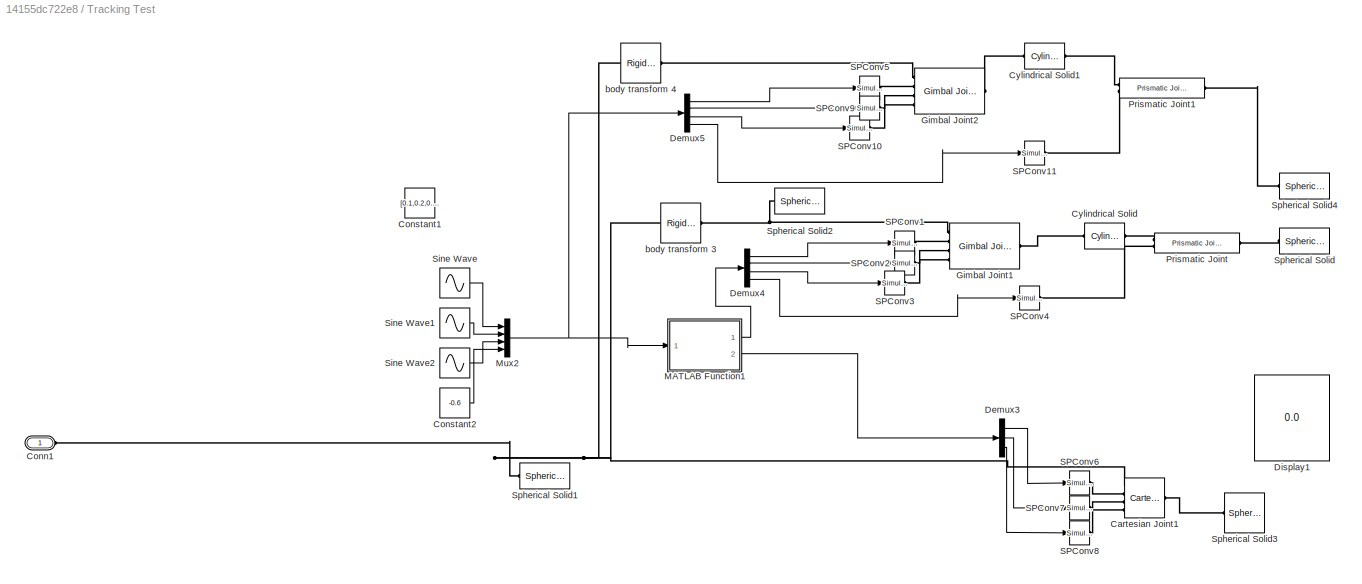
BLOCK [SubSystem] Tracking Test
  Commented = on
  Ports = [0, 0, 0, 0, 0, 1]
  RequestExecContextInheritance = off
BLOCK [Reference] Tracking Test/Cartesian Joint1  REF=sm_lib/Joints/Cartesian
Joint
  Ports = [0, 0, 0, 0, 0, 4, 1]
  SourceBlock = sm_lib/Joints/Cartesian\nJoint
  SourceProductBaseCode = MS
  SourceProductName = Simscape Multibody
  SourceType = Cartesian\nJoint
BLOCK [PMIOPort] Tracking Test/Conn1
  Side = Left
BLOCK [Constant] Tracking Test/Constant1
  Value = [0.1,0.2,0.3,-0.6]
BLOCK [Constant] Tracking Test/Constant2
  Value = -0.6
BLOCK [Reference] Tracking Test/Cylindrical Solid  REF=sm_lib/Body Elements/Cylindrical Solid
  Ports = [0, 0, 0, 0, 0, 1, 1]
  SourceBlock = sm_lib/Body Elements/Cylindrical Solid
  SourceProductBaseCode = MS
  SourceProductName = Simscape Multibody
  SourceType = Cylindrical Solid
BLOCK [Reference] Tracking Test/Cylindrical Solid1  REF=sm_lib/Body Elements/Cylindrical Solid
  Ports = [0, 0, 0, 0, 0, 1, 1]
  SourceBlock = sm_lib/Body Elements/Cylindrical Solid
  SourceProductBaseCode = MS
  SourceProductName = Simscape Multibody
  SourceType = Cylindrical Solid
BLOCK [Demux] Tracking Test/Demux3
  DisplayOption = bar
  Outputs = 3
  Ports = [1, 3]
BLOCK [Demux] Tracking Test/Demux4
  DisplayOption = bar
  Ports = [1, 4]
BLOCK [Demux] Tracking Test/Demux5
  DisplayOption = bar
  Ports = [1, 4]
BLOCK [Display] Tracking Test/Display1
  Decimation = 1
  Ports = [1]
BLOCK [Reference] Tracking Test/Gimbal Joint1  REF=sm_lib/Joints/Gimbal Joint
  Ports = [0, 0, 0, 0, 0, 4, 1]
  SourceBlock = sm_lib/Joints/Gimbal Joint
  SourceProductBaseCode = MS
  SourceProductName = Simscape Multibody
  SourceType = Gimbal Joint
BLOCK [Reference] Tracking Test/Gimbal Joint2  REF=sm_lib/Joints/Gimbal Joint
  Ports = [0, 0, 0, 0, 0, 4, 1]
  SourceBlock = sm_lib/Joints/Gimbal Joint
  SourceProductBaseCode = MS
  SourceProductName = Simscape Multibody
  SourceType = Gimbal Joint
BLOCK [SubSystem] Tracking Test/MATLAB Function1
  ErrorFcn = Stateflow.Translate.translate
  PermitHierarchicalResolution = ExplicitOnly
  Ports = [1, 2]
  RequestExecContextInheritance = off
  SFBlockType = MATLAB Function
  TreatAsAtomicUnit = on
BLOCK [Demux] Tracking Test/MATLAB Function1/ Demux 
  Outputs = 1
  Ports = [1, 1]
BLOCK [S-Function] Tracking Test/MATLAB Function1/ SFunction 
  EnableBusSupport = on
  FunctionName = sf_sfun
  PortCounts = [1 3]
  Ports = [1, 3]
  SFcnIsStateOwnerBlock = off
  SFunctionDeploymentMode = off
  Tag = Stateflow S-Function 3
BLOCK [Terminator] Tracking Test/MATLAB Function1/ Terminator 
BLOCK [Inport] Tracking Test/MATLAB Function1/q
  IconDisplay = Port number
BLOCK [Outport] Tracking Test/MATLAB Function1/q_out
  IconDisplay = Port number
BLOCK [Outport] Tracking Test/MATLAB Function1/x
  IconDisplay = Port number
  Port = 2
BLOCK [Mux] Tracking Test/Mux2
  DisplayOption = bar
  Ports = [4, 1]
BLOCK [Reference] Tracking Test/Prismatic Joint  REF=sm_lib/Joints/Prismatic
Joint
  Ports = [0, 0, 0, 0, 0, 2, 1]
  SourceBlock = sm_lib/Joints/Prismatic\nJoint
  SourceProductBaseCode = MS
  SourceProductName = Simscape Multibody
  SourceType = Prismatic\nJoint
BLOCK [Reference] Tracking Test/Prismatic Joint1  REF=sm_lib/Joints/Prismatic
Joint
  Ports = [0, 0, 0, 0, 0, 2, 1]
  SourceBlock = sm_lib/Joints/Prismatic\nJoint
  SourceProductBaseCode = MS
  SourceProductName = Simscape Multibody
  SourceType = Prismatic\nJoint
BLOCK [Reference] Tracking Test/SPConv1  REF=nesl_utility/Simulink-PS
Converter
  Ports = [1, 0, 0, 0, 0, 0, 1]
  SourceBlock = nesl_utility/Simulink-PS\nConverter
  SourceProductBaseCode = SS
  SourceProductName = Simscape
  SourceType = Simulink-PS\nConverter
BLOCK [Reference] Tracking Test/SPConv10  REF=nesl_utility/Simulink-PS
Converter
  Ports = [1, 0, 0, 0, 0, 0, 1]
  SourceBlock = nesl_utility/Simulink-PS\nConverter
  SourceProductBaseCode = SS
  SourceProductName = Simscape
  SourceType = Simulink-PS\nConverter
BLOCK [Reference] Tracking Test/SPConv11  REF=nesl_utility/Simulink-PS
Converter
  Ports = [1, 0, 0, 0, 0, 0, 1]
  SourceBlock = nesl_utility/Simulink-PS\nConverter
  SourceProductBaseCode = SS
  SourceProductName = Simscape
  SourceType = Simulink-PS\nConverter
BLOCK [Reference] Tracking Test/SPConv2  REF=nesl_utility/Simulink-PS
Converter
  Ports = [1, 0, 0, 0, 0, 0, 1]
  SourceBlock = nesl_utility/Simulink-PS\nConverter
  SourceProductBaseCode = SS
  SourceProductName = Simscape
  SourceType = Simulink-PS\nConverter
BLOCK [Reference] Tracking Test/SPConv3  REF=nesl_utility/Simulink-PS
Converter
  Ports = [1, 0, 0, 0, 0, 0, 1]
  SourceBlock = nesl_utility/Simulink-PS\nConverter
  SourceProductBaseCode = SS
  SourceProductName = Simscape
  SourceType = Simulink-PS\nConverter
BLOCK [Reference] Tracking Test/SPConv4  REF=nesl_utility/Simulink-PS
Converter
  Ports = [1, 0, 0, 0, 0, 0, 1]
  SourceBlock = nesl_utility/Simulink-PS\nConverter
  SourceProductBaseCode = SS
  SourceProductName = Simscape
  SourceType = Simulink-PS\nConverter
BLOCK [Reference] Tracking Test/SPConv5  REF=nesl_utility/Simulink-PS
Converter
  Ports = [1, 0, 0, 0, 0, 0, 1]
  SourceBlock = nesl_utility/Simulink-PS\nConverter
  SourceProductBaseCode = SS
  SourceProductName = Simscape
  SourceType = Simulink-PS\nConverter
BLOCK [Reference] Tracking Test/SPConv6  REF=nesl_utility/Simulink-PS
Converter
  Ports = [1, 0, 0, 0, 0, 0, 1]
  SourceBlock = nesl_utility/Simulink-PS\nConverter
  SourceProductBaseCode = SS
  SourceProductName = Simscape
  SourceType = Simulink-PS\nConverter
BLOCK [Reference] Tracking Test/SPConv7  REF=nesl_utility/Simulink-PS
Converter
  Ports = [1, 0, 0, 0, 0, 0, 1]
  SourceBlock = nesl_utility/Simulink-PS\nConverter
  SourceProductBaseCode = SS
  SourceProductName = Simscape
  SourceType = Simulink-PS\nConverter
BLOCK [Reference] Tracking Test/SPConv8  REF=nesl_utility/Simulink-PS
Converter
  Ports = [1, 0, 0, 0, 0, 0, 1]
  SourceBlock = nesl_utility/Simulink-PS\nConverter
  SourceProductBaseCode = SS
  SourceProductName = Simscape
  SourceType = Simulink-PS\nConverter
BLOCK [Reference] Tracking Test/SPConv9  REF=nesl_utility/Simulink-PS
Converter
  Ports = [1, 0, 0, 0, 0, 0, 1]
  SourceBlock = nesl_utility/Simulink-PS\nConverter
  SourceProductBaseCode = SS
  SourceProductName = Simscape
  SourceType = Simulink-PS\nConverter
BLOCK [Sin] Tracking Test/Sine Wave
  Ports = [0, 1]
  SampleTime = 0
BLOCK [Sin] Tracking Test/Sine Wave1
  Ports = [0, 1]
  SampleTime = 0
BLOCK [Sin] Tracking Test/Sine Wave2
  Ports = [0, 1]
  SampleTime = 0
BLOCK [Reference] Tracking Test/Spherical Solid  REF=sm_lib/Body Elements/Spherical Solid
  Ports = [0, 0, 0, 0, 0, 0, 1]
  SourceBlock = sm_lib/Body Elements/Spherical Solid
  SourceProductBaseCode = MS
  SourceProductName = Simscape Multibody
  SourceType = Spherical Solid
BLOCK [Reference] Tracking Test/Spherical Solid1  REF=sm_lib/Body Elements/Spherical Solid
  Ports = [0, 0, 0, 0, 0, 0, 1]
  SourceBlock = sm_lib/Body Elements/Spherical Solid
  SourceProductBaseCode = MS
  SourceProductName = Simscape Multibody
  SourceType = Spherical Solid
BLOCK [Reference] Tracking Test/Spherical Solid2  REF=sm_lib/Body Elements/Spherical Solid
  Ports = [0, 0, 0, 0, 0, 0, 1]
  SourceBlock = sm_lib/Body Elements/Spherical Solid
  SourceProductBaseCode = MS
  SourceProductName = Simscape Multibody
  SourceType = Spherical Solid
BLOCK [Reference] Tracking Test/Spherical Solid3  REF=sm_lib/Body Elements/Spherical Solid
  Ports = [0, 0, 0, 0, 0, 0, 1]
  SourceBlock = sm_lib/Body Elements/Spherical Solid
  SourceProductBaseCode = MS
  SourceProductName = Simscape Multibody
  SourceType = Spherical Solid
BLOCK [Reference] Tracking Test/Spherical Solid4  REF=sm_lib/Body Elements/Spherical Solid
  Ports = [0, 0, 0, 0, 0, 0, 1]
  SourceBlock = sm_lib/Body Elements/Spherical Solid
  SourceProductBaseCode = MS
  SourceProductName = Simscape Multibody
  SourceType = Spherical Solid
BLOCK [Reference] Tracking Test/body transform 3  REF=sm_lib/Frames and
Transforms/Rigid
Transform
  Ports = [0, 0, 0, 0, 0, 1, 1]
  SourceBlock = sm_lib/Frames and\nTransforms/Rigid\nTransform
  SourceProductBaseCode = MS
  SourceProductName = Simscape Multibody
  SourceType = Rigid\nTransform
BLOCK [Reference] Tracking Test/body transform 4  REF=sm_lib/Frames and
Transforms/Rigid
Transform
  Ports = [0, 0, 0, 0, 0, 1, 1]
  SourceBlock = sm_lib/Frames and\nTransforms/Rigid\nTransform
  SourceProductBaseCode = MS
  SourceProductName = Simscape Multibody
  SourceType = Rigid\nTransform
BLOCK [Reference] Transform Sensor  REF=sm_lib/Frames and
Transforms/Transform
Sensor
  Ports = [0, 0, 0, 0, 0, 1, 2]
  SourceBlock = sm_lib/Frames and\nTransforms/Transform\nSensor
  SourceProductBaseCode = MS
  SourceProductName = Simscape Multibody
  SourceType = Transform\nSensor
BLOCK [SubSystem] Variant Subsystem
  LabelModeActiveChoice = 6-dof
  Ports = [0, 0, 0, 0, 0, 2]
  RequestExecContextInheritance = off
  Variant = on
  VariantControlMode = Label
BLOCK [PMIOPort] Variant Subsystem/1 
  Side = Left
BLOCK [PMIOPort] Variant Subsystem/2
  Port = 2
  Side = Left
BLOCK [SubSystem] Variant Subsystem/6dof 
  Ports = [0, 0, 0, 0, 0, 2]
  RequestExecContextInheritance = off
  VariantControl = 6-dof
BLOCK [PMIOPort] Variant Subsystem/6dof /1 
  Side = Left
BLOCK [PMIOPort] Variant Subsystem/6dof /2
  Port = 2
  Side = Left
BLOCK [Reference] Variant Subsystem/6dof /6-DOF Joint  REF=sm_lib/Joints/6-DOF Joint
  Ports = [0, 0, 0, 0, 0, 1, 1]
  SourceBlock = sm_lib/Joints/6-DOF Joint
  SourceProductBaseCode = MS
  SourceProductName = Simscape Multibody
  SourceType = 6-DOF Joint
BLOCK [SubSystem] Variant Subsystem/planar 
  Ports = [0, 0, 0, 0, 0, 2]
  RequestExecContextInheritance = off
  VariantControl = planar
BLOCK [PMIOPort] Variant Subsystem/planar /1 
  Side = Left
BLOCK [PMIOPort] Variant Subsystem/planar /2
  Port = 2
  Side = Left
BLOCK [Reference] Variant Subsystem/planar /Planar Joint  REF=sm_lib/Joints/Planar Joint
  Ports = [0, 0, 0, 0, 0, 1, 1]
  SourceBlock = sm_lib/Joints/Planar Joint
  SourceProductBaseCode = MS
  SourceProductName = Simscape Multibody
  SourceType = Planar Joint
BLOCK [Reference] Variant Subsystem/planar /Plane_offset3  REF=sm_lib/Frames and
Transforms/Rigid
Transform
  Ports = [0, 0, 0, 0, 0, 1, 1]
  SourceBlock = sm_lib/Frames and\nTransforms/Rigid\nTransform
  SourceProductBaseCode = MS
  SourceProductName = Simscape Multibody
  SourceType = Rigid\nTransform
BLOCK [Reference] Variant Subsystem/planar /Plane_offset4  REF=sm_lib/Frames and
Transforms/Rigid
Transform
  Ports = [0, 0, 0, 0, 0, 1, 1]
  SourceBlock = sm_lib/Frames and\nTransforms/Rigid\nTransform
  SourceProductBaseCode = MS
  SourceProductName = Simscape Multibody
  SourceType = Rigid\nTransform
BLOCK [Reference] World  REF=sm_lib/Frames and
Transforms/World Frame
  Ports = [0, 0, 0, 0, 0, 0, 1]
  SourceBlock = sm_lib/Frames and\nTransforms/World Frame
  SourceProductBaseCode = MS
  SourceProductName = Simscape Multibody
  SourceType = World Frame
BLOCK [Reference] World Plane   REF=sm_lib/Body Elements/Brick Solid
  Ports = [0, 0, 0, 0, 0, 0, 1]
  SourceBlock = sm_lib/Body Elements/Brick Solid
  SourceProductBaseCode = MS
  SourceProductName = Simscape Multibody
  SourceType = Brick Solid
BLOCK [Reference] body transform   REF=sm_lib/Frames and
Transforms/Rigid
Transform
  Ports = [0, 0, 0, 0, 0, 1, 1]
  SourceBlock = sm_lib/Frames and\nTransforms/Rigid\nTransform
  SourceProductBaseCode = MS
  SourceProductName = Simscape Multibody
  SourceType = Rigid\nTransform
BLOCK [Reference] body transform 2  REF=sm_lib/Frames and
Transforms/Rigid
Transform
  Commented = on
  Ports = [0, 0, 0, 0, 0, 1, 1]
  SourceBlock = sm_lib/Frames and\nTransforms/Rigid\nTransform
  SourceProductBaseCode = MS
  SourceProductName = Simscape Multibody
  SourceType = Rigid\nTransform
BLOCK [Constant] desired_q 
  Value = desired_q
BLOCK [Constant] desired_q 1
  Commented = on
  Value = desired_leg
BLOCK [SubSystem] leg_end_vis
  Commented = on
  Ports = [1, 0, 0, 0, 0, 1]
  RequestExecContextInheritance = off
BLOCK [PMIOPort] leg_end_vis/Connection Port
  Side = Left
  Tag = PMCPort
BLOCK [Demux] leg_end_vis/Demux
  DisplayOption = bar
  Ports = [1, 4]
BLOCK [Inport] leg_end_vis/In1
  IconDisplay = Port number
BLOCK [Reshape] leg_end_vis/Reshape
  OutputDimensionality = Column vector (2-D)
  Ports = [1, 1]
BLOCK [SubSystem] leg_end_vis/Subsystem1
  Ports = [1, 0, 0, 0, 0, 1]
  RequestExecContextInheritance = off
BLOCK [Reference] leg_end_vis/Subsystem1/Cartesian Joint1  REF=sm_lib/Joints/Cartesian
Joint
  Ports = [0, 0, 0, 0, 0, 4, 1]
  SourceBlock = sm_lib/Joints/Cartesian\nJoint
  SourceProductBaseCode = MS
  SourceProductName = Simscape Multibody
  SourceType = Cartesian\nJoint
BLOCK [PMIOPort] leg_end_vis/Subsystem1/Connection Port
  Side = Left
  Tag = PMCPort
BLOCK [Demux] leg_end_vis/Subsystem1/Demux
  DisplayOption = bar
  Outputs = 3
  Ports = [1, 3]
BLOCK [Inport] leg_end_vis/Subsystem1/In1
  IconDisplay = Port number
BLOCK [Reference] leg_end_vis/Subsystem1/SPConv6  REF=nesl_utility/Simulink-PS
Converter
  Ports = [1, 0, 0, 0, 0, 0, 1]
  SourceBlock = nesl_utility/Simulink-PS\nConverter
  SourceProductBaseCode = SS
  SourceProductName = Simscape
  SourceType = Simulink-PS\nConverter
BLOCK [Reference] leg_end_vis/Subsystem1/SPConv7  REF=nesl_utility/Simulink-PS
Converter
  Ports = [1, 0, 0, 0, 0, 0, 1]
  SourceBlock = nesl_utility/Simulink-PS\nConverter
  SourceProductBaseCode = SS
  SourceProductName = Simscape
  SourceType = Simulink-PS\nConverter
BLOCK [Reference] leg_end_vis/Subsystem1/SPConv8  REF=nesl_utility/Simulink-PS
Converter
  Ports = [1, 0, 0, 0, 0, 0, 1]
  SourceBlock = nesl_utility/Simulink-PS\nConverter
  SourceProductBaseCode = SS
  SourceProductName = Simscape
  SourceType = Simulink-PS\nConverter
BLOCK [Reference] leg_end_vis/Subsystem1/Spherical Solid3  REF=sm_lib/Body Elements/Spherical Solid
  Ports = [0, 0, 0, 0, 0, 0, 1]
  SourceBlock = sm_lib/Body Elements/Spherical Solid
  SourceProductBaseCode = MS
  SourceProductName = Simscape Multibody
  SourceType = Spherical Solid
BLOCK [SubSystem] leg_end_vis/Subsystem2
  Ports = [1, 0, 0, 0, 0, 1]
  RequestExecContextInheritance = off
BLOCK [Reference] leg_end_vis/Subsystem2/Cartesian Joint1  REF=sm_lib/Joints/Cartesian
Joint
  Ports = [0, 0, 0, 0, 0, 4, 1]
  SourceBlock = sm_lib/Joints/Cartesian\nJoint
  SourceProductBaseCode = MS
  SourceProductName = Simscape Multibody
  SourceType = Cartesian\nJoint
BLOCK [PMIOPort] leg_end_vis/Subsystem2/Connection Port
  Side = Left
  Tag = PMCPort
BLOCK [Demux] leg_end_vis/Subsystem2/Demux
  DisplayOption = bar
  Outputs = 3
  Ports = [1, 3]
BLOCK [Inport] leg_end_vis/Subsystem2/In1
  IconDisplay = Port number
BLOCK [Reference] leg_end_vis/Subsystem2/SPConv6  REF=nesl_utility/Simulink-PS
Converter
  Ports = [1, 0, 0, 0, 0, 0, 1]
  SourceBlock = nesl_utility/Simulink-PS\nConverter
  SourceProductBaseCode = SS
  SourceProductName = Simscape
  SourceType = Simulink-PS\nConverter
BLOCK [Reference] leg_end_vis/Subsystem2/SPConv7  REF=nesl_utility/Simulink-PS
Converter
  Ports = [1, 0, 0, 0, 0, 0, 1]
  SourceBlock = nesl_utility/Simulink-PS\nConverter
  SourceProductBaseCode = SS
  SourceProductName = Simscape
  SourceType = Simulink-PS\nConverter
BLOCK [Reference] leg_end_vis/Subsystem2/SPConv8  REF=nesl_utility/Simulink-PS
Converter
  Ports = [1, 0, 0, 0, 0, 0, 1]
  SourceBlock = nesl_utility/Simulink-PS\nConverter
  SourceProductBaseCode = SS
  SourceProductName = Simscape
  SourceType = Simulink-PS\nConverter
BLOCK [Reference] leg_end_vis/Subsystem2/Spherical Solid3  REF=sm_lib/Body Elements/Spherical Solid
  Ports = [0, 0, 0, 0, 0, 0, 1]
  SourceBlock = sm_lib/Body Elements/Spherical Solid
  SourceProductBaseCode = MS
  SourceProductName = Simscape Multibody
  SourceType = Spherical Solid
BLOCK [SubSystem] leg_end_vis/Subsystem3
  Ports = [1, 0, 0, 0, 0, 1]
  RequestExecContextInheritance = off
BLOCK [Reference] leg_end_vis/Subsystem3/Cartesian Joint1  REF=sm_lib/Joints/Cartesian
Joint
  Ports = [0, 0, 0, 0, 0, 4, 1]
  SourceBlock = sm_lib/Joints/Cartesian\nJoint
  SourceProductBaseCode = MS
  SourceProductName = Simscape Multibody
  SourceType = Cartesian\nJoint
BLOCK [PMIOPort] leg_end_vis/Subsystem3/Connection Port
  Side = Left
  Tag = PMCPort
BLOCK [Demux] leg_end_vis/Subsystem3/Demux
  DisplayOption = bar
  Outputs = 3
  Ports = [1, 3]
BLOCK [Inport] leg_end_vis/Subsystem3/In1
  IconDisplay = Port number
BLOCK [Reference] leg_end_vis/Subsystem3/SPConv6  REF=nesl_utility/Simulink-PS
Converter
  Ports = [1, 0, 0, 0, 0, 0, 1]
  SourceBlock = nesl_utility/Simulink-PS\nConverter
  SourceProductBaseCode = SS
  SourceProductName = Simscape
  SourceType = Simulink-PS\nConverter
BLOCK [Reference] leg_end_vis/Subsystem3/SPConv7  REF=nesl_utility/Simulink-PS
Converter
  Ports = [1, 0, 0, 0, 0, 0, 1]
  SourceBlock = nesl_utility/Simulink-PS\nConverter
  SourceProductBaseCode = SS
  SourceProductName = Simscape
  SourceType = Simulink-PS\nConverter
BLOCK [Reference] leg_end_vis/Subsystem3/SPConv8  REF=nesl_utility/Simulink-PS
Converter
  Ports = [1, 0, 0, 0, 0, 0, 1]
  SourceBlock = nesl_utility/Simulink-PS\nConverter
  SourceProductBaseCode = SS
  SourceProductName = Simscape
  SourceType = Simulink-PS\nConverter
BLOCK [Reference] leg_end_vis/Subsystem3/Spherical Solid3  REF=sm_lib/Body Elements/Spherical Solid
  Ports = [0, 0, 0, 0, 0, 0, 1]
  SourceBlock = sm_lib/Body Elements/Spherical Solid
  SourceProductBaseCode = MS
  SourceProductName = Simscape Multibody
  SourceType = Spherical Solid
BLOCK [SubSystem] leg_end_vis/Subsystem4
  Ports = [1, 0, 0, 0, 0, 1]
  RequestExecContextInheritance = off
BLOCK [Reference] leg_end_vis/Subsystem4/Cartesian Joint1  REF=sm_lib/Joints/Cartesian
Joint
  Ports = [0, 0, 0, 0, 0, 4, 1]
  SourceBlock = sm_lib/Joints/Cartesian\nJoint
  SourceProductBaseCode = MS
  SourceProductName = Simscape Multibody
  SourceType = Cartesian\nJoint
BLOCK [PMIOPort] leg_end_vis/Subsystem4/Connection Port
  Side = Left
  Tag = PMCPort
BLOCK [Demux] leg_end_vis/Subsystem4/Demux
  DisplayOption = bar
  Outputs = 3
  Ports = [1, 3]
BLOCK [Inport] leg_end_vis/Subsystem4/In1
  IconDisplay = Port number
BLOCK [Reference] leg_end_vis/Subsystem4/SPConv6  REF=nesl_utility/Simulink-PS
Converter
  Ports = [1, 0, 0, 0, 0, 0, 1]
  SourceBlock = nesl_utility/Simulink-PS\nConverter
  SourceProductBaseCode = SS
  SourceProductName = Simscape
  SourceType = Simulink-PS\nConverter
BLOCK [Reference] leg_end_vis/Subsystem4/SPConv7  REF=nesl_utility/Simulink-PS
Converter
  Ports = [1, 0, 0, 0, 0, 0, 1]
  SourceBlock = nesl_utility/Simulink-PS\nConverter
  SourceProductBaseCode = SS
  SourceProductName = Simscape
  SourceType = Simulink-PS\nConverter
BLOCK [Reference] leg_end_vis/Subsystem4/SPConv8  REF=nesl_utility/Simulink-PS
Converter
  Ports = [1, 0, 0, 0, 0, 0, 1]
  SourceBlock = nesl_utility/Simulink-PS\nConverter
  SourceProductBaseCode = SS
  SourceProductName = Simscape
  SourceType = Simulink-PS\nConverter
BLOCK [Reference] leg_end_vis/Subsystem4/Spherical Solid3  REF=sm_lib/Body Elements/Spherical Solid
  Ports = [0, 0, 0, 0, 0, 0, 1]
  SourceBlock = sm_lib/Body Elements/Spherical Solid
  SourceProductBaseCode = MS
  SourceProductName = Simscape Multibody
  SourceType = Spherical Solid
BLOCK [SubSystem] leg_top_vis
  Commented = on
  Ports = [1, 0, 0, 0, 0, 1]
  RequestExecContextInheritance = off
BLOCK [PMIOPort] leg_top_vis/Connection Port
  Side = Left
  Tag = PMCPort
BLOCK [Demux] leg_top_vis/Demux
  DisplayOption = bar
  Ports = [1, 4]
BLOCK [Inport] leg_top_vis/In1
  IconDisplay = Port number
BLOCK [Reshape] leg_top_vis/Reshape
  OutputDimensionality = Column vector (2-D)
  Ports = [1, 1]
BLOCK [SubSystem] leg_top_vis/Subsystem1
  Ports = [1, 0, 0, 0, 0, 1]
  RequestExecContextInheritance = off
BLOCK [Reference] leg_top_vis/Subsystem1/Cartesian Joint1  REF=sm_lib/Joints/Cartesian
Joint
  Ports = [0, 0, 0, 0, 0, 4, 1]
  SourceBlock = sm_lib/Joints/Cartesian\nJoint
  SourceProductBaseCode = MS
  SourceProductName = Simscape Multibody
  SourceType = Cartesian\nJoint
BLOCK [PMIOPort] leg_top_vis/Subsystem1/Connection Port
  Side = Left
  Tag = PMCPort
BLOCK [Demux] leg_top_vis/Subsystem1/Demux
  DisplayOption = bar
  Outputs = 3
  Ports = [1, 3]
BLOCK [Inport] leg_top_vis/Subsystem1/In1
  IconDisplay = Port number
BLOCK [Reference] leg_top_vis/Subsystem1/SPConv6  REF=nesl_utility/Simulink-PS
Converter
  Ports = [1, 0, 0, 0, 0, 0, 1]
  SourceBlock = nesl_utility/Simulink-PS\nConverter
  SourceProductBaseCode = SS
  SourceProductName = Simscape
  SourceType = Simulink-PS\nConverter
BLOCK [Reference] leg_top_vis/Subsystem1/SPConv7  REF=nesl_utility/Simulink-PS
Converter
  Ports = [1, 0, 0, 0, 0, 0, 1]
  SourceBlock = nesl_utility/Simulink-PS\nConverter
  SourceProductBaseCode = SS
  SourceProductName = Simscape
  SourceType = Simulink-PS\nConverter
BLOCK [Reference] leg_top_vis/Subsystem1/SPConv8  REF=nesl_utility/Simulink-PS
Converter
  Ports = [1, 0, 0, 0, 0, 0, 1]
  SourceBlock = nesl_utility/Simulink-PS\nConverter
  SourceProductBaseCode = SS
  SourceProductName = Simscape
  SourceType = Simulink-PS\nConverter
BLOCK [Reference] leg_top_vis/Subsystem1/Spherical Solid3  REF=sm_lib/Body Elements/Spherical Solid
  Ports = [0, 0, 0, 0, 0, 0, 1]
  SourceBlock = sm_lib/Body Elements/Spherical Solid
  SourceProductBaseCode = MS
  SourceProductName = Simscape Multibody
  SourceType = Spherical Solid
BLOCK [SubSystem] leg_top_vis/Subsystem2
  Ports = [1, 0, 0, 0, 0, 1]
  RequestExecContextInheritance = off
BLOCK [Reference] leg_top_vis/Subsystem2/Cartesian Joint1  REF=sm_lib/Joints/Cartesian
Joint
  Ports = [0, 0, 0, 0, 0, 4, 1]
  SourceBlock = sm_lib/Joints/Cartesian\nJoint
  SourceProductBaseCode = MS
  SourceProductName = Simscape Multibody
  SourceType = Cartesian\nJoint
BLOCK [PMIOPort] leg_top_vis/Subsystem2/Connection Port
  Side = Left
  Tag = PMCPort
BLOCK [Demux] leg_top_vis/Subsystem2/Demux
  DisplayOption = bar
  Outputs = 3
  Ports = [1, 3]
BLOCK [Inport] leg_top_vis/Subsystem2/In1
  IconDisplay = Port number
BLOCK [Reference] leg_top_vis/Subsystem2/SPConv6  REF=nesl_utility/Simulink-PS
Converter
  Ports = [1, 0, 0, 0, 0, 0, 1]
  SourceBlock = nesl_utility/Simulink-PS\nConverter
  SourceProductBaseCode = SS
  SourceProductName = Simscape
  SourceType = Simulink-PS\nConverter
BLOCK [Reference] leg_top_vis/Subsystem2/SPConv7  REF=nesl_utility/Simulink-PS
Converter
  Ports = [1, 0, 0, 0, 0, 0, 1]
  SourceBlock = nesl_utility/Simulink-PS\nConverter
  SourceProductBaseCode = SS
  SourceProductName = Simscape
  SourceType = Simulink-PS\nConverter
BLOCK [Reference] leg_top_vis/Subsystem2/SPConv8  REF=nesl_utility/Simulink-PS
Converter
  Ports = [1, 0, 0, 0, 0, 0, 1]
  SourceBlock = nesl_utility/Simulink-PS\nConverter
  SourceProductBaseCode = SS
  SourceProductName = Simscape
  SourceType = Simulink-PS\nConverter
BLOCK [Reference] leg_top_vis/Subsystem2/Spherical Solid3  REF=sm_lib/Body Elements/Spherical Solid
  Ports = [0, 0, 0, 0, 0, 0, 1]
  SourceBlock = sm_lib/Body Elements/Spherical Solid
  SourceProductBaseCode = MS
  SourceProductName = Simscape Multibody
  SourceType = Spherical Solid
BLOCK [SubSystem] leg_top_vis/Subsystem3
  Ports = [1, 0, 0, 0, 0, 1]
  RequestExecContextInheritance = off
BLOCK [Reference] leg_top_vis/Subsystem3/Cartesian Joint1  REF=sm_lib/Joints/Cartesian
Joint
  Ports = [0, 0, 0, 0, 0, 4, 1]
  SourceBlock = sm_lib/Joints/Cartesian\nJoint
  SourceProductBaseCode = MS
  SourceProductName = Simscape Multibody
  SourceType = Cartesian\nJoint
BLOCK [PMIOPort] leg_top_vis/Subsystem3/Connection Port
  Side = Left
  Tag = PMCPort
BLOCK [Demux] leg_top_vis/Subsystem3/Demux
  DisplayOption = bar
  Outputs = 3
  Ports = [1, 3]
BLOCK [Inport] leg_top_vis/Subsystem3/In1
  IconDisplay = Port number
BLOCK [Reference] leg_top_vis/Subsystem3/SPConv6  REF=nesl_utility/Simulink-PS
Converter
  Ports = [1, 0, 0, 0, 0, 0, 1]
  SourceBlock = nesl_utility/Simulink-PS\nConverter
  SourceProductBaseCode = SS
  SourceProductName = Simscape
  SourceType = Simulink-PS\nConverter
BLOCK [Reference] leg_top_vis/Subsystem3/SPConv7  REF=nesl_utility/Simulink-PS
Converter
  Ports = [1, 0, 0, 0, 0, 0, 1]
  SourceBlock = nesl_utility/Simulink-PS\nConverter
  SourceProductBaseCode = SS
  SourceProductName = Simscape
  SourceType = Simulink-PS\nConverter
BLOCK [Reference] leg_top_vis/Subsystem3/SPConv8  REF=nesl_utility/Simulink-PS
Converter
  Ports = [1, 0, 0, 0, 0, 0, 1]
  SourceBlock = nesl_utility/Simulink-PS\nConverter
  SourceProductBaseCode = SS
  SourceProductName = Simscape
  SourceType = Simulink-PS\nConverter
BLOCK [Reference] leg_top_vis/Subsystem3/Spherical Solid3  REF=sm_lib/Body Elements/Spherical Solid
  Ports = [0, 0, 0, 0, 0, 0, 1]
  SourceBlock = sm_lib/Body Elements/Spherical Solid
  SourceProductBaseCode = MS
  SourceProductName = Simscape Multibody
  SourceType = Spherical Solid
BLOCK [SubSystem] leg_top_vis/Subsystem4
  Ports = [1, 0, 0, 0, 0, 1]
  RequestExecContextInheritance = off
BLOCK [Reference] leg_top_vis/Subsystem4/Cartesian Joint1  REF=sm_lib/Joints/Cartesian
Joint
  Ports = [0, 0, 0, 0, 0, 4, 1]
  SourceBlock = sm_lib/Joints/Cartesian\nJoint
  SourceProductBaseCode = MS
  SourceProductName = Simscape Multibody
  SourceType = Cartesian\nJoint
BLOCK [PMIOPort] leg_top_vis/Subsystem4/Connection Port
  Side = Left
  Tag = PMCPort
BLOCK [Demux] leg_top_vis/Subsystem4/Demux
  DisplayOption = bar
  Outputs = 3
  Ports = [1, 3]
BLOCK [Inport] leg_top_vis/Subsystem4/In1
  IconDisplay = Port number
BLOCK [Reference] leg_top_vis/Subsystem4/SPConv6  REF=nesl_utility/Simulink-PS
Converter
  Ports = [1, 0, 0, 0, 0, 0, 1]
  SourceBlock = nesl_utility/Simulink-PS\nConverter
  SourceProductBaseCode = SS
  SourceProductName = Simscape
  SourceType = Simulink-PS\nConverter
BLOCK [Reference] leg_top_vis/Subsystem4/SPConv7  REF=nesl_utility/Simulink-PS
Converter
  Ports = [1, 0, 0, 0, 0, 0, 1]
  SourceBlock = nesl_utility/Simulink-PS\nConverter
  SourceProductBaseCode = SS
  SourceProductName = Simscape
  SourceType = Simulink-PS\nConverter
BLOCK [Reference] leg_top_vis/Subsystem4/SPConv8  REF=nesl_utility/Simulink-PS
Converter
  Ports = [1, 0, 0, 0, 0, 0, 1]
  SourceBlock = nesl_utility/Simulink-PS\nConverter
  SourceProductBaseCode = SS
  SourceProductName = Simscape
  SourceType = Simulink-PS\nConverter
BLOCK [Reference] leg_top_vis/Subsystem4/Spherical Solid3  REF=sm_lib/Body Elements/Spherical Solid
  Ports = [0, 0, 0, 0, 0, 0, 1]
  SourceBlock = sm_lib/Body Elements/Spherical Solid
  SourceProductBaseCode = MS
  SourceProductName = Simscape Multibody
  SourceType = Spherical Solid
BLOCK [SubSystem] x_sin
  Ports = [0, 1]
  RequestExecContextInheritance = off
BLOCK [Constant] x_sin/Constant1
  Value = 0
BLOCK [Outport] x_sin/Out1
  IconDisplay = Port number
BLOCK [Sin] x_sin/Sine Wave
  Amplitude = amplitude_x
  Frequency = f_x
  Phase = -2*f_x
  Ports = [0, 1]
  SampleTime = 0
BLOCK [Step] x_sin/Step
  SampleTime = 0
  Time = 2
BLOCK [Switch] x_sin/Switch
  Criteria = u2 > Threshold
  InputSameDT = off
  SaturateOnIntegerOverflow = off
BLOCK [SubSystem] y_sin
  Ports = [0, 1]
  RequestExecContextInheritance = off
BLOCK [Constant] y_sin/Constant1
  Value = 0
BLOCK [Outport] y_sin/Out1
  IconDisplay = Port number
BLOCK [Sin] y_sin/Sine Wave
  Amplitude = amplitude_y
  Frequency = f_y
  Phase = -2*f_y
  Ports = [0, 1]
  SampleTime = 0
BLOCK [Step] y_sin/Step
  SampleTime = 0
  Time = 2
BLOCK [Switch] y_sin/Switch
  Criteria = u2 > Threshold
  InputSameDT = off
  SaturateOnIntegerOverflow = off
BLOCK [SubSystem] z_sin
  Ports = [0, 1]
  RequestExecContextInheritance = off
BLOCK [Constant] z_sin/Constant1
  Value = 0
BLOCK [Outport] z_sin/Out1
  IconDisplay = Port number
BLOCK [Sin] z_sin/Sine Wave
  Amplitude = amplitude_z
  Frequency = f_z
  Phase = -2*f_z
  Ports = [0, 1]
  SampleTime = 0
BLOCK [Step] z_sin/Step
  SampleTime = 0
  Time = 2
BLOCK [Switch] z_sin/Switch
  Criteria = u2 > Threshold
  InputSameDT = off
  SaturateOnIntegerOverflow = off
ANNOTATION (root): Controller
ANNOTATION (root): Robot
ANNOTATION (root): Target Motion
ANNOTATION (root): Test Only
ANNOTATION Variant Subsystem: 1) Add Subsystem or Model blocks as valid variant choices. 2) You cannot connect blocks at this level. At simulation, connectivity is automatically determined, based on the active variant and port name matching.
NET Controller:1 -> Scope10:1, Scopes:1, Subsystem4:1, Target Motion:3
LINE Delay1:1 -> Terminator4:1
LINE Delay:1 -> Controller:1
LINE PS-Simulink Converter4:1 -> Delay:1
LINE Scopes/Demux1:1 -> Scopes/Out1:1
LINE Scopes/Demux1:10 -> Scopes/Out8:1
LINE Scopes/Demux1:11 -> Scopes/Out9:1
LINE Scopes/Demux1:12 -> Scopes/Scope3:1
LINE Scopes/Demux1:13 -> Scopes/Out10:1
LINE Scopes/Demux1:14 -> Scopes/Out11:1
LINE Scopes/Demux1:15 -> Scopes/Out12:1
LINE Scopes/Demux1:16 -> Scopes/Scope4:1
LINE Scopes/Demux1:2 -> Scopes/Out2:1
LINE Scopes/Demux1:3 -> Scopes/Out3:1
NET Scopes/Demux1:4 -> Scopes/Mux1:1, Scopes/Scope:1
LINE Scopes/Demux1:5 -> Scopes/Out4:1
LINE Scopes/Demux1:6 -> Scopes/Out5:1
LINE Scopes/Demux1:7 -> Scopes/Out6:1
NET Scopes/Demux1:8 -> Scopes/Mux1:2, Scopes/Scope2:1
LINE Scopes/Demux1:9 -> Scopes/Out7:1
LINE Scopes/In1:1 -> Scopes/Demux1:1
LINE Scopes/Mux1:1 -> Scopes/Scope1:1
LINE Step1:1 -> Controller:2
LINE Subsystem4/Bus Selector1:1 -> Subsystem4/Mux:2
LINE Subsystem4/Bus Selector2:1 -> Subsystem4/Mux:3
LINE Subsystem4/Bus Selector3:1 -> Subsystem4/Mux:4
LINE Subsystem4/Bus Selector:1 -> Subsystem4/Mux:1
LINE Subsystem4/Control_Input:1 -> Subsystem4/Sum:2
NET Subsystem4/Demux:1 -> Subsystem4/FRcontrol:1, Subsystem4/Subsystem:1
NET Subsystem4/Demux:2 -> Subsystem4/FL control:1, Subsystem4/Subsystem1:1
NET Subsystem4/Demux:3 -> Subsystem4/BR control:1, Subsystem4/Subsystem2:1
NET Subsystem4/Demux:4 -> Subsystem4/BL control:1, Subsystem4/Subsystem3:1
LINE Subsystem4/Mux:1 -> Subsystem4/Normal Force:1
LINE Subsystem4/Sphere to Plane Force FR1:1 -> Subsystem4/Bus Selector1:1
LINE Subsystem4/Sphere to Plane Force FR2:1 -> Subsystem4/Bus Selector2:1
LINE Subsystem4/Sphere to Plane Force FR3:1 -> Subsystem4/Bus Selector3:1
LINE Subsystem4/Sphere to Plane Force FR:1 -> Subsystem4/Bus Selector:1
LINE Subsystem4/Subsystem/Demux:1 -> Subsystem4/Subsystem/Simulink-PS Converter3:1
LINE Subsystem4/Subsystem/Demux:2 -> Subsystem4/Subsystem/Simulink-PS Converter1:1
LINE Subsystem4/Subsystem/Demux:3 -> Subsystem4/Subsystem/Simulink-PS Converter2:1
LINE Subsystem4/Subsystem/Demux:4 -> Subsystem4/Subsystem/Simulink-PS Converter4:1
LINE Subsystem4/Subsystem/Input:1 -> Subsystem4/Subsystem/Demux:1
LINE Subsystem4/Subsystem1/Demux:1 -> Subsystem4/Subsystem1/Simulink-PS Converter3:1
LINE Subsystem4/Subsystem1/Demux:2 -> Subsystem4/Subsystem1/Simulink-PS Converter1:1
LINE Subsystem4/Subsystem1/Demux:3 -> Subsystem4/Subsystem1/Simulink-PS Converter2:1
LINE Subsystem4/Subsystem1/Demux:4 -> Subsystem4/Subsystem1/Simulink-PS Converter4:1
LINE Subsystem4/Subsystem1/Input:1 -> Subsystem4/Subsystem1/Demux:1
LINE Subsystem4/Subsystem2/Demux:1 -> Subsystem4/Subsystem2/Simulink-PS Converter3:1
LINE Subsystem4/Subsystem2/Demux:2 -> Subsystem4/Subsystem2/Simulink-PS Converter1:1
LINE Subsystem4/Subsystem2/Demux:3 -> Subsystem4/Subsystem2/Simulink-PS Converter2:1
LINE Subsystem4/Subsystem2/Demux:4 -> Subsystem4/Subsystem2/Simulink-PS Converter4:1
LINE Subsystem4/Subsystem2/Input:1 -> Subsystem4/Subsystem2/Demux:1
LINE Subsystem4/Subsystem3/Demux:1 -> Subsystem4/Subsystem3/Simulink-PS Converter3:1
LINE Subsystem4/Subsystem3/Demux:2 -> Subsystem4/Subsystem3/Simulink-PS Converter1:1
LINE Subsystem4/Subsystem3/Demux:3 -> Subsystem4/Subsystem3/Simulink-PS Converter2:1
LINE Subsystem4/Subsystem3/Demux:4 -> Subsystem4/Subsystem3/Simulink-PS Converter4:1
LINE Subsystem4/Subsystem3/Input:1 -> Subsystem4/Subsystem3/Demux:1
LINE Subsystem4/Sum:1 -> Subsystem4/Demux:1
LINE Subsystem4:1 -> Delay1:1
LINE Subsystem4:2 -> Scope5:1
LINE Subsystem4:3 -> Scope6:1
LINE Subsystem4:4 -> Scope7:1
LINE Subsystem4:5 -> Scope8:1
NET Target Motion/Demux2:1 -> Target Motion/Scope13:1, Target Motion/Subsystem4:1
NET Target Motion/Demux2:2 -> Target Motion/Scope14:1, Target Motion/Subsystem5:1
NET Target Motion/Demux2:3 -> Target Motion/Scope11:1, Target Motion/Subsystem10:1
NET Target Motion/Demux2:4 -> Target Motion/Scope12:1, Target Motion/Subsystem11:1
LINE Target Motion/In1:1 -> Target Motion/leg_end_vis1:1
LINE Target Motion/In2:1 -> Target Motion/leg_top_vis1:1
LINE Target Motion/In3:1 -> Target Motion/Sum1:2
LINE Target Motion/Subsystem10/Demux:1 -> Target Motion/Subsystem10/Simulink-PS Converter3:1
LINE Target Motion/Subsystem10/Demux:2 -> Target Motion/Subsystem10/Simulink-PS Converter1:1
LINE Target Motion/Subsystem10/Demux:3 -> Target Motion/Subsystem10/Simulink-PS Converter2:1
LINE Target Motion/Subsystem10/Demux:4 -> Target Motion/Subsystem10/Simulink-PS Converter4:1
LINE Target Motion/Subsystem10/Input:1 -> Target Motion/Subsystem10/Demux:1
LINE Target Motion/Subsystem11/Demux:1 -> Target Motion/Subsystem11/Simulink-PS Converter3:1
LINE Target Motion/Subsystem11/Demux:2 -> Target Motion/Subsystem11/Simulink-PS Converter1:1
LINE Target Motion/Subsystem11/Demux:3 -> Target Motion/Subsystem11/Simulink-PS Converter2:1
LINE Target Motion/Subsystem11/Demux:4 -> Target Motion/Subsystem11/Simulink-PS Converter4:1
LINE Target Motion/Subsystem11/Input:1 -> Target Motion/Subsystem11/Demux:1
LINE Target Motion/Subsystem4/Demux:1 -> Target Motion/Subsystem4/Simulink-PS Converter3:1
LINE Target Motion/Subsystem4/Demux:2 -> Target Motion/Subsystem4/Simulink-PS Converter1:1
LINE Target Motion/Subsystem4/Demux:3 -> Target Motion/Subsystem4/Simulink-PS Converter2:1
LINE Target Motion/Subsystem4/Demux:4 -> Target Motion/Subsystem4/Simulink-PS Converter4:1
LINE Target Motion/Subsystem4/Input:1 -> Target Motion/Subsystem4/Demux:1
LINE Target Motion/Subsystem5/Demux:1 -> Target Motion/Subsystem5/Simulink-PS Converter3:1
LINE Target Motion/Subsystem5/Demux:2 -> Target Motion/Subsystem5/Simulink-PS Converter1:1
LINE Target Motion/Subsystem5/Demux:3 -> Target Motion/Subsystem5/Simulink-PS Converter2:1
LINE Target Motion/Subsystem5/Demux:4 -> Target Motion/Subsystem5/Simulink-PS Converter4:1
LINE Target Motion/Subsystem5/Input:1 -> Target Motion/Subsystem5/Demux:1
LINE Target Motion/Sum1:1 -> Target Motion/Demux2:1
LINE Target Motion/leg_end_vis1/Demux:1 -> Target Motion/leg_end_vis1/Subsystem4:1
LINE Target Motion/leg_end_vis1/Demux:2 -> Target Motion/leg_end_vis1/Subsystem1:1
LINE Target Motion/leg_end_vis1/Demux:3 -> Target Motion/leg_end_vis1/Subsystem2:1
LINE Target Motion/leg_end_vis1/Demux:4 -> Target Motion/leg_end_vis1/Subsystem3:1
LINE Target Motion/leg_end_vis1/In1:1 -> Target Motion/leg_end_vis1/Reshape:1
LINE Target Motion/leg_end_vis1/Reshape:1 -> Target Motion/leg_end_vis1/Demux:1
LINE Target Motion/leg_end_vis1/Subsystem1/Demux:1 -> Target Motion/leg_end_vis1/Subsystem1/SPConv6:1
LINE Target Motion/leg_end_vis1/Subsystem1/Demux:2 -> Target Motion/leg_end_vis1/Subsystem1/SPConv7:1
LINE Target Motion/leg_end_vis1/Subsystem1/Demux:3 -> Target Motion/leg_end_vis1/Subsystem1/SPConv8:1
LINE Target Motion/leg_end_vis1/Subsystem1/In1:1 -> Target Motion/leg_end_vis1/Subsystem1/Demux:1
LINE Target Motion/leg_end_vis1/Subsystem2/Demux:1 -> Target Motion/leg_end_vis1/Subsystem2/SPConv6:1
LINE Target Motion/leg_end_vis1/Subsystem2/Demux:2 -> Target Motion/leg_end_vis1/Subsystem2/SPConv7:1
LINE Target Motion/leg_end_vis1/Subsystem2/Demux:3 -> Target Motion/leg_end_vis1/Subsystem2/SPConv8:1
LINE Target Motion/leg_end_vis1/Subsystem2/In1:1 -> Target Motion/leg_end_vis1/Subsystem2/Demux:1
LINE Target Motion/leg_end_vis1/Subsystem3/Demux:1 -> Target Motion/leg_end_vis1/Subsystem3/SPConv6:1
LINE Target Motion/leg_end_vis1/Subsystem3/Demux:2 -> Target Motion/leg_end_vis1/Subsystem3/SPConv7:1
LINE Target Motion/leg_end_vis1/Subsystem3/Demux:3 -> Target Motion/leg_end_vis1/Subsystem3/SPConv8:1
LINE Target Motion/leg_end_vis1/Subsystem3/In1:1 -> Target Motion/leg_end_vis1/Subsystem3/Demux:1
LINE Target Motion/leg_end_vis1/Subsystem4/Demux:1 -> Target Motion/leg_end_vis1/Subsystem4/SPConv6:1
LINE Target Motion/leg_end_vis1/Subsystem4/Demux:2 -> Target Motion/leg_end_vis1/Subsystem4/SPConv7:1
LINE Target Motion/leg_end_vis1/Subsystem4/Demux:3 -> Target Motion/leg_end_vis1/Subsystem4/SPConv8:1
LINE Target Motion/leg_end_vis1/Subsystem4/In1:1 -> Target Motion/leg_end_vis1/Subsystem4/Demux:1
LINE Target Motion/leg_top_vis1/Demux:1 -> Target Motion/leg_top_vis1/Subsystem4:1
LINE Target Motion/leg_top_vis1/Demux:2 -> Target Motion/leg_top_vis1/Subsystem1:1
LINE Target Motion/leg_top_vis1/Demux:3 -> Target Motion/leg_top_vis1/Subsystem2:1
LINE Target Motion/leg_top_vis1/Demux:4 -> Target Motion/leg_top_vis1/Subsystem3:1
LINE Target Motion/leg_top_vis1/In1:1 -> Target Motion/leg_top_vis1/Reshape:1
LINE Target Motion/leg_top_vis1/Reshape:1 -> Target Motion/leg_top_vis1/Demux:1
LINE Target Motion/leg_top_vis1/Subsystem1/Demux:1 -> Target Motion/leg_top_vis1/Subsystem1/SPConv6:1
LINE Target Motion/leg_top_vis1/Subsystem1/Demux:2 -> Target Motion/leg_top_vis1/Subsystem1/SPConv7:1
LINE Target Motion/leg_top_vis1/Subsystem1/Demux:3 -> Target Motion/leg_top_vis1/Subsystem1/SPConv8:1
LINE Target Motion/leg_top_vis1/Subsystem1/In1:1 -> Target Motion/leg_top_vis1/Subsystem1/Demux:1
LINE Target Motion/leg_top_vis1/Subsystem2/Demux:1 -> Target Motion/leg_top_vis1/Subsystem2/SPConv6:1
LINE Target Motion/leg_top_vis1/Subsystem2/Demux:2 -> Target Motion/leg_top_vis1/Subsystem2/SPConv7:1
LINE Target Motion/leg_top_vis1/Subsystem2/Demux:3 -> Target Motion/leg_top_vis1/Subsystem2/SPConv8:1
LINE Target Motion/leg_top_vis1/Subsystem2/In1:1 -> Target Motion/leg_top_vis1/Subsystem2/Demux:1
LINE Target Motion/leg_top_vis1/Subsystem3/Demux:1 -> Target Motion/leg_top_vis1/Subsystem3/SPConv6:1
LINE Target Motion/leg_top_vis1/Subsystem3/Demux:2 -> Target Motion/leg_top_vis1/Subsystem3/SPConv7:1
LINE Target Motion/leg_top_vis1/Subsystem3/Demux:3 -> Target Motion/leg_top_vis1/Subsystem3/SPConv8:1
LINE Target Motion/leg_top_vis1/Subsystem3/In1:1 -> Target Motion/leg_top_vis1/Subsystem3/Demux:1
LINE Target Motion/leg_top_vis1/Subsystem4/Demux:1 -> Target Motion/leg_top_vis1/Subsystem4/SPConv6:1
LINE Target Motion/leg_top_vis1/Subsystem4/Demux:2 -> Target Motion/leg_top_vis1/Subsystem4/SPConv7:1
LINE Target Motion/leg_top_vis1/Subsystem4/Demux:3 -> Target Motion/leg_top_vis1/Subsystem4/SPConv8:1
LINE Target Motion/leg_top_vis1/Subsystem4/In1:1 -> Target Motion/leg_top_vis1/Subsystem4/Demux:1
LINE Tracking Test/Constant2:1 -> Tracking Test/Mux2:4
LINE Tracking Test/Demux3:1 -> Tracking Test/SPConv6:1
LINE Tracking Test/Demux3:2 -> Tracking Test/SPConv7:1
LINE Tracking Test/Demux3:3 -> Tracking Test/SPConv8:1
LINE Tracking Test/Demux4:1 -> Tracking Test/SPConv1:1
LINE Tracking Test/Demux4:2 -> Tracking Test/SPConv2:1
LINE Tracking Test/Demux4:3 -> Tracking Test/SPConv3:1
LINE Tracking Test/Demux4:4 -> Tracking Test/SPConv4:1
LINE Tracking Test/Demux5:1 -> Tracking Test/SPConv5:1
LINE Tracking Test/Demux5:2 -> Tracking Test/SPConv9:1
LINE Tracking Test/Demux5:3 -> Tracking Test/SPConv10:1
LINE Tracking Test/Demux5:4 -> Tracking Test/SPConv11:1
LINE Tracking Test/MATLAB Function1:1 -> Tracking Test/Demux4:1
LINE Tracking Test/MATLAB Function1:2 -> Tracking Test/Demux3:1
NET Tracking Test/Mux2:1 -> Tracking Test/Demux5:1, Tracking Test/MATLAB Function1:1
LINE Tracking Test/Sine Wave1:1 -> Tracking Test/Mux2:2
LINE Tracking Test/Sine Wave2:1 -> Tracking Test/Mux2:3
LINE Tracking Test/Sine Wave:1 -> Tracking Test/Mux2:1
LINE leg_end_vis/Demux:1 -> leg_end_vis/Subsystem4:1
LINE leg_end_vis/Demux:2 -> leg_end_vis/Subsystem1:1
LINE leg_end_vis/Demux:3 -> leg_end_vis/Subsystem2:1
LINE leg_end_vis/Demux:4 -> leg_end_vis/Subsystem3:1
LINE leg_end_vis/In1:1 -> leg_end_vis/Reshape:1
LINE leg_end_vis/Reshape:1 -> leg_end_vis/Demux:1
LINE leg_end_vis/Subsystem1/Demux:1 -> leg_end_vis/Subsystem1/SPConv6:1
LINE leg_end_vis/Subsystem1/Demux:2 -> leg_end_vis/Subsystem1/SPConv7:1
LINE leg_end_vis/Subsystem1/Demux:3 -> leg_end_vis/Subsystem1/SPConv8:1
LINE leg_end_vis/Subsystem1/In1:1 -> leg_end_vis/Subsystem1/Demux:1
LINE leg_end_vis/Subsystem2/Demux:1 -> leg_end_vis/Subsystem2/SPConv6:1
LINE leg_end_vis/Subsystem2/Demux:2 -> leg_end_vis/Subsystem2/SPConv7:1
LINE leg_end_vis/Subsystem2/Demux:3 -> leg_end_vis/Subsystem2/SPConv8:1
LINE leg_end_vis/Subsystem2/In1:1 -> leg_end_vis/Subsystem2/Demux:1
LINE leg_end_vis/Subsystem3/Demux:1 -> leg_end_vis/Subsystem3/SPConv6:1
LINE leg_end_vis/Subsystem3/Demux:2 -> leg_end_vis/Subsystem3/SPConv7:1
LINE leg_end_vis/Subsystem3/Demux:3 -> leg_end_vis/Subsystem3/SPConv8:1
LINE leg_end_vis/Subsystem3/In1:1 -> leg_end_vis/Subsystem3/Demux:1
LINE leg_end_vis/Subsystem4/Demux:1 -> leg_end_vis/Subsystem4/SPConv6:1
LINE leg_end_vis/Subsystem4/Demux:2 -> leg_end_vis/Subsystem4/SPConv7:1
LINE leg_end_vis/Subsystem4/Demux:3 -> leg_end_vis/Subsystem4/SPConv8:1
LINE leg_end_vis/Subsystem4/In1:1 -> leg_end_vis/Subsystem4/Demux:1
LINE leg_top_vis/Demux:1 -> leg_top_vis/Subsystem4:1
LINE leg_top_vis/Demux:2 -> leg_top_vis/Subsystem1:1
LINE leg_top_vis/Demux:3 -> leg_top_vis/Subsystem2:1
LINE leg_top_vis/Demux:4 -> leg_top_vis/Subsystem3:1
LINE leg_top_vis/In1:1 -> leg_top_vis/Reshape:1
LINE leg_top_vis/Reshape:1 -> leg_top_vis/Demux:1
LINE leg_top_vis/Subsystem1/Demux:1 -> leg_top_vis/Subsystem1/SPConv6:1
LINE leg_top_vis/Subsystem1/Demux:2 -> leg_top_vis/Subsystem1/SPConv7:1
LINE leg_top_vis/Subsystem1/Demux:3 -> leg_top_vis/Subsystem1/SPConv8:1
LINE leg_top_vis/Subsystem1/In1:1 -> leg_top_vis/Subsystem1/Demux:1
LINE leg_top_vis/Subsystem2/Demux:1 -> leg_top_vis/Subsystem2/SPConv6:1
LINE leg_top_vis/Subsystem2/Demux:2 -> leg_top_vis/Subsystem2/SPConv7:1
LINE leg_top_vis/Subsystem2/Demux:3 -> leg_top_vis/Subsystem2/SPConv8:1
LINE leg_top_vis/Subsystem2/In1:1 -> leg_top_vis/Subsystem2/Demux:1
LINE leg_top_vis/Subsystem3/Demux:1 -> leg_top_vis/Subsystem3/SPConv6:1
LINE leg_top_vis/Subsystem3/Demux:2 -> leg_top_vis/Subsystem3/SPConv7:1
LINE leg_top_vis/Subsystem3/Demux:3 -> leg_top_vis/Subsystem3/SPConv8:1
LINE leg_top_vis/Subsystem3/In1:1 -> leg_top_vis/Subsystem3/Demux:1
LINE leg_top_vis/Subsystem4/Demux:1 -> leg_top_vis/Subsystem4/SPConv6:1
LINE leg_top_vis/Subsystem4/Demux:2 -> leg_top_vis/Subsystem4/SPConv7:1
LINE leg_top_vis/Subsystem4/Demux:3 -> leg_top_vis/Subsystem4/SPConv8:1
LINE leg_top_vis/Subsystem4/In1:1 -> leg_top_vis/Subsystem4/Demux:1
LINE x_sin/Constant1:1 -> x_sin/Switch:3
LINE x_sin/Sine Wave:1 -> x_sin/Switch:1
LINE x_sin/Step:1 -> x_sin/Switch:2
LINE x_sin/Switch:1 -> x_sin/Out1:1
LINE x_sin:1 -> Simulink-PS Converter3:1
LINE y_sin/Constant1:1 -> y_sin/Switch:3
LINE y_sin/Sine Wave:1 -> y_sin/Switch:1
LINE y_sin/Step:1 -> y_sin/Switch:2
LINE y_sin/Switch:1 -> y_sin/Out1:1
LINE y_sin:1 -> Simulink-PS Converter1:1
LINE z_sin/Constant1:1 -> z_sin/Switch:3
LINE z_sin/Sine Wave:1 -> z_sin/Switch:1
LINE z_sin/Step:1 -> z_sin/Switch:2
LINE z_sin/Switch:1 -> z_sin/Out1:1
LINE z_sin:1 -> Simulink-PS Converter2:1
PNET net1: Gimbal Joint3:LConn1 -- MechanismConfiguration:RConn1 -- Solver Configuration:RConn1 -- Target Motion:LConn5 -- Transform Sensor:LConn1 -- World:RConn1 -- body transform 2:LConn1 -- body transform :LConn1
PLINE Gimbal Joint3:LConn2 -- Simulink-PS Converter3:RConn1
PLINE Gimbal Joint3:LConn3 -- Simulink-PS Converter1:RConn1
PLINE Gimbal Joint3:LConn4 -- Simulink-PS Converter2:RConn1
PNET net2: Gimbal Joint3:RConn1 -- Subsystem4:LConn1 -- World Plane :RConn1 -- leg_end_vis:LConn1 -- leg_top_vis:LConn1
PLINE PS-Simulink Converter4:LConn1 -- Transform Sensor:RConn2
PLINE Subsystem4/Body:RConn1 -- Subsystem4/Brick Solid:RConn1
PLINE Subsystem4/Brick Solid:LConn1 -- Subsystem4/Subsystem:LConn1
PLINE Subsystem4/Brick Solid:LConn2 -- Subsystem4/Subsystem1:LConn1
PLINE Subsystem4/Brick Solid:LConn3 -- Subsystem4/Subsystem3:LConn1
PLINE Subsystem4/Brick Solid:RConn2 -- Subsystem4/Subsystem2:LConn1
PNET net3: Subsystem4/Ground:RConn1 -- Subsystem4/Sphere to Plane Force FR1:RConn1 -- Subsystem4/Sphere to Plane Force FR2:RConn1 -- Subsystem4/Sphere to Plane Force FR3:RConn1 -- Subsystem4/Sphere to Plane Force FR:RConn1
PLINE Subsystem4/Sphere to Plane Force FR1:LConn1 -- Subsystem4/Subsystem1:LConn2
PLINE Subsystem4/Sphere to Plane Force FR2:LConn1 -- Subsystem4/Subsystem2:LConn2
PLINE Subsystem4/Sphere to Plane Force FR3:LConn1 -- Subsystem4/Subsystem3:LConn2
PLINE Subsystem4/Sphere to Plane Force FR:LConn1 -- Subsystem4/Subsystem:LConn2
PLINE Subsystem4/Subsystem/Cylindrical Solid:LConn1 -- Subsystem4/Subsystem/Gimbal Joint3:RConn1
PLINE Subsystem4/Subsystem/Cylindrical Solid:RConn1 -- Subsystem4/Subsystem/Prismatic Joint:LConn1
PLINE Subsystem4/Subsystem/FR :RConn1 -- Subsystem4/Subsystem/Gimbal Joint3:LConn1
PLINE Subsystem4/Subsystem/Gimbal Joint3:LConn2 -- Subsystem4/Subsystem/Simulink-PS Converter3:RConn1
PLINE Subsystem4/Subsystem/Gimbal Joint3:LConn3 -- Subsystem4/Subsystem/Simulink-PS Converter1:RConn1
PLINE Subsystem4/Subsystem/Gimbal Joint3:LConn4 -- Subsystem4/Subsystem/Simulink-PS Converter2:RConn1
PLINE Subsystem4/Subsystem/Prismatic Joint:LConn2 -- Subsystem4/Subsystem/Simulink-PS Converter4:RConn1
PNET net4: Subsystem4/Subsystem/Prismatic Joint:RConn1 -- Subsystem4/Subsystem/Spherical Solid:RConn1 -- Subsystem4/Subsystem/foot:RConn1
PLINE Subsystem4/Subsystem1/Cylindrical Solid:LConn1 -- Subsystem4/Subsystem1/Gimbal Joint2:RConn1
PLINE Subsystem4/Subsystem1/Cylindrical Solid:RConn1 -- Subsystem4/Subsystem1/Prismatic Joint1:LConn1
PLINE Subsystem4/Subsystem1/FL :RConn1 -- Subsystem4/Subsystem1/Gimbal Joint2:LConn1
PLINE Subsystem4/Subsystem1/Gimbal Joint2:LConn2 -- Subsystem4/Subsystem1/Simulink-PS Converter3:RConn1
PLINE Subsystem4/Subsystem1/Gimbal Joint2:LConn3 -- Subsystem4/Subsystem1/Simulink-PS Converter1:RConn1
PLINE Subsystem4/Subsystem1/Gimbal Joint2:LConn4 -- Subsystem4/Subsystem1/Simulink-PS Converter2:RConn1
PLINE Subsystem4/Subsystem1/Prismatic Joint1:LConn2 -- Subsystem4/Subsystem1/Simulink-PS Converter4:RConn1
PNET net5: Subsystem4/Subsystem1/Prismatic Joint1:RConn1 -- Subsystem4/Subsystem1/Spherical Solid1:RConn1 -- Subsystem4/Subsystem1/foot:RConn1
PLINE Subsystem4/Subsystem2/BR :RConn1 -- Subsystem4/Subsystem2/Gimbal Joint1:LConn1
PLINE Subsystem4/Subsystem2/Cylindrical Solid:LConn1 -- Subsystem4/Subsystem2/Gimbal Joint1:RConn1
PLINE Subsystem4/Subsystem2/Cylindrical Solid:RConn1 -- Subsystem4/Subsystem2/Prismatic Joint2:LConn1
PLINE Subsystem4/Subsystem2/Gimbal Joint1:LConn2 -- Subsystem4/Subsystem2/Simulink-PS Converter3:RConn1
PLINE Subsystem4/Subsystem2/Gimbal Joint1:LConn3 -- Subsystem4/Subsystem2/Simulink-PS Converter1:RConn1
PLINE Subsystem4/Subsystem2/Gimbal Joint1:LConn4 -- Subsystem4/Subsystem2/Simulink-PS Converter2:RConn1
PLINE Subsystem4/Subsystem2/Prismatic Joint2:LConn2 -- Subsystem4/Subsystem2/Simulink-PS Converter4:RConn1
PNET net6: Subsystem4/Subsystem2/Prismatic Joint2:RConn1 -- Subsystem4/Subsystem2/Spherical Solid2:RConn1 -- Subsystem4/Subsystem2/foot:RConn1
PLINE Subsystem4/Subsystem3/BL :RConn1 -- Subsystem4/Subsystem3/Gimbal Joint:LConn1
PLINE Subsystem4/Subsystem3/Cylindrical Solid:LConn1 -- Subsystem4/Subsystem3/Gimbal Joint:RConn1
PLINE Subsystem4/Subsystem3/Cylindrical Solid:RConn1 -- Subsystem4/Subsystem3/Prismatic Joint3:LConn1
PLINE Subsystem4/Subsystem3/Gimbal Joint:LConn2 -- Subsystem4/Subsystem3/Simulink-PS Converter3:RConn1
PLINE Subsystem4/Subsystem3/Gimbal Joint:LConn3 -- Subsystem4/Subsystem3/Simulink-PS Converter1:RConn1
PLINE Subsystem4/Subsystem3/Gimbal Joint:LConn4 -- Subsystem4/Subsystem3/Simulink-PS Converter2:RConn1
PLINE Subsystem4/Subsystem3/Prismatic Joint3:LConn2 -- Subsystem4/Subsystem3/Simulink-PS Converter4:RConn1
PNET net7: Subsystem4/Subsystem3/Prismatic Joint3:RConn1 -- Subsystem4/Subsystem3/Spherical Solid3:RConn1 -- Subsystem4/Subsystem3/foot:RConn1
PNET net8: Subsystem4:RConn1 -- Transform Sensor:RConn1 -- Variant Subsystem:LConn2
PLINE Target Motion/Brick Solid1:LConn1 -- Target Motion/Subsystem4:LConn1
PLINE Target Motion/Brick Solid1:LConn2 -- Target Motion/Subsystem5:LConn1
PLINE Target Motion/Brick Solid1:LConn3 -- Target Motion/Subsystem11:LConn1
PLINE Target Motion/Brick Solid1:RConn1 -- Target Motion/body transform 5:RConn1
PLINE Target Motion/Brick Solid1:RConn2 -- Target Motion/Subsystem10:LConn1
PLINE Target Motion/Conn1:RConn1 -- Target Motion/Subsystem4:LConn2
PLINE Target Motion/Conn2:RConn1 -- Target Motion/Subsystem5:LConn2
PLINE Target Motion/Conn3:RConn1 -- Target Motion/Subsystem10:LConn2
PLINE Target Motion/Conn4:RConn1 -- Target Motion/Subsystem11:LConn2
PLINE Target Motion/Conn5:RConn1 -- Target Motion/body transform 1:LConn1
PLINE Target Motion/Subsystem10/BR :RConn1 -- Target Motion/Subsystem10/Gimbal Joint1:LConn1
PLINE Target Motion/Subsystem10/Cylindrical Solid:LConn1 -- Target Motion/Subsystem10/Gimbal Joint1:RConn1
PLINE Target Motion/Subsystem10/Cylindrical Solid:RConn1 -- Target Motion/Subsystem10/Prismatic Joint2:LConn1
PLINE Target Motion/Subsystem10/Gimbal Joint1:LConn2 -- Target Motion/Subsystem10/Simulink-PS Converter3:RConn1
PLINE Target Motion/Subsystem10/Gimbal Joint1:LConn3 -- Target Motion/Subsystem10/Simulink-PS Converter1:RConn1
PLINE Target Motion/Subsystem10/Gimbal Joint1:LConn4 -- Target Motion/Subsystem10/Simulink-PS Converter2:RConn1
PLINE Target Motion/Subsystem10/Prismatic Joint2:LConn2 -- Target Motion/Subsystem10/Simulink-PS Converter4:RConn1
PNET net9: Target Motion/Subsystem10/Prismatic Joint2:RConn1 -- Target Motion/Subsystem10/Spherical Solid2:RConn1 -- Target Motion/Subsystem10/foot:RConn1
PLINE Target Motion/Subsystem11/BL :RConn1 -- Target Motion/Subsystem11/Gimbal Joint:LConn1
PLINE Target Motion/Subsystem11/Cylindrical Solid:LConn1 -- Target Motion/Subsystem11/Gimbal Joint:RConn1
PLINE Target Motion/Subsystem11/Cylindrical Solid:RConn1 -- Target Motion/Subsystem11/Prismatic Joint3:LConn1
PLINE Target Motion/Subsystem11/Gimbal Joint:LConn2 -- Target Motion/Subsystem11/Simulink-PS Converter3:RConn1
PLINE Target Motion/Subsystem11/Gimbal Joint:LConn3 -- Target Motion/Subsystem11/Simulink-PS Converter1:RConn1
PLINE Target Motion/Subsystem11/Gimbal Joint:LConn4 -- Target Motion/Subsystem11/Simulink-PS Converter2:RConn1
PLINE Target Motion/Subsystem11/Prismatic Joint3:LConn2 -- Target Motion/Subsystem11/Simulink-PS Converter4:RConn1
PNET net10: Target Motion/Subsystem11/Prismatic Joint3:RConn1 -- Target Motion/Subsystem11/Spherical Solid3:RConn1 -- Target Motion/Subsystem11/foot:RConn1
PLINE Target Motion/Subsystem4/Cylindrical Solid:LConn1 -- Target Motion/Subsystem4/Gimbal Joint3:RConn1
PLINE Target Motion/Subsystem4/Cylindrical Solid:RConn1 -- Target Motion/Subsystem4/Prismatic Joint:LConn1
PLINE Target Motion/Subsystem4/FR :RConn1 -- Target Motion/Subsystem4/Gimbal Joint3:LConn1
PLINE Target Motion/Subsystem4/Gimbal Joint3:LConn2 -- Target Motion/Subsystem4/Simulink-PS Converter3:RConn1
PLINE Target Motion/Subsystem4/Gimbal Joint3:LConn3 -- Target Motion/Subsystem4/Simulink-PS Converter1:RConn1
PLINE Target Motion/Subsystem4/Gimbal Joint3:LConn4 -- Target Motion/Subsystem4/Simulink-PS Converter2:RConn1
PLINE Target Motion/Subsystem4/Prismatic Joint:LConn2 -- Target Motion/Subsystem4/Simulink-PS Converter4:RConn1
PNET net11: Target Motion/Subsystem4/Prismatic Joint:RConn1 -- Target Motion/Subsystem4/Spherical Solid:RConn1 -- Target Motion/Subsystem4/foot:RConn1
PLINE Target Motion/Subsystem5/Cylindrical Solid:LConn1 -- Target Motion/Subsystem5/Gimbal Joint2:RConn1
PLINE Target Motion/Subsystem5/Cylindrical Solid:RConn1 -- Target Motion/Subsystem5/Prismatic Joint1:LConn1
PLINE Target Motion/Subsystem5/FL :RConn1 -- Target Motion/Subsystem5/Gimbal Joint2:LConn1
PLINE Target Motion/Subsystem5/Gimbal Joint2:LConn2 -- Target Motion/Subsystem5/Simulink-PS Converter3:RConn1
PLINE Target Motion/Subsystem5/Gimbal Joint2:LConn3 -- Target Motion/Subsystem5/Simulink-PS Converter1:RConn1
PLINE Target Motion/Subsystem5/Gimbal Joint2:LConn4 -- Target Motion/Subsystem5/Simulink-PS Converter2:RConn1
PLINE Target Motion/Subsystem5/Prismatic Joint1:LConn2 -- Target Motion/Subsystem5/Simulink-PS Converter4:RConn1
PNET net12: Target Motion/Subsystem5/Prismatic Joint1:RConn1 -- Target Motion/Subsystem5/Spherical Solid1:RConn1 -- Target Motion/Subsystem5/foot:RConn1
PNET net13: Target Motion/body transform 1:RConn1 -- Target Motion/body transform 5:LConn1 -- Target Motion/leg_end_vis1:LConn1 -- Target Motion/leg_top_vis1:LConn1
PNET net14: Target Motion/leg_end_vis1/Connection Port:RConn1 -- Target Motion/leg_end_vis1/Subsystem1:LConn1 -- Target Motion/leg_end_vis1/Subsystem2:LConn1 -- Target Motion/leg_end_vis1/Subsystem3:LConn1 -- Target Motion/leg_end_vis1/Subsystem4:LConn1
PLINE Target Motion/leg_end_vis1/Subsystem1/Cartesian Joint1:LConn1 -- Target Motion/leg_end_vis1/Subsystem1/Connection Port:RConn1
PLINE Target Motion/leg_end_vis1/Subsystem1/Cartesian Joint1:LConn2 -- Target Motion/leg_end_vis1/Subsystem1/SPConv6:RConn1
PLINE Target Motion/leg_end_vis1/Subsystem1/Cartesian Joint1:LConn3 -- Target Motion/leg_end_vis1/Subsystem1/SPConv7:RConn1
PLINE Target Motion/leg_end_vis1/Subsystem1/Cartesian Joint1:LConn4 -- Target Motion/leg_end_vis1/Subsystem1/SPConv8:RConn1
PLINE Target Motion/leg_end_vis1/Subsystem1/Cartesian Joint1:RConn1 -- Target Motion/leg_end_vis1/Subsystem1/Spherical Solid3:RConn1
PLINE Target Motion/leg_end_vis1/Subsystem2/Cartesian Joint1:LConn1 -- Target Motion/leg_end_vis1/Subsystem2/Connection Port:RConn1
PLINE Target Motion/leg_end_vis1/Subsystem2/Cartesian Joint1:LConn2 -- Target Motion/leg_end_vis1/Subsystem2/SPConv6:RConn1
PLINE Target Motion/leg_end_vis1/Subsystem2/Cartesian Joint1:LConn3 -- Target Motion/leg_end_vis1/Subsystem2/SPConv7:RConn1
PLINE Target Motion/leg_end_vis1/Subsystem2/Cartesian Joint1:LConn4 -- Target Motion/leg_end_vis1/Subsystem2/SPConv8:RConn1
PLINE Target Motion/leg_end_vis1/Subsystem2/Cartesian Joint1:RConn1 -- Target Motion/leg_end_vis1/Subsystem2/Spherical Solid3:RConn1
PLINE Target Motion/leg_end_vis1/Subsystem3/Cartesian Joint1:LConn1 -- Target Motion/leg_end_vis1/Subsystem3/Connection Port:RConn1
PLINE Target Motion/leg_end_vis1/Subsystem3/Cartesian Joint1:LConn2 -- Target Motion/leg_end_vis1/Subsystem3/SPConv6:RConn1
PLINE Target Motion/leg_end_vis1/Subsystem3/Cartesian Joint1:LConn3 -- Target Motion/leg_end_vis1/Subsystem3/SPConv7:RConn1
PLINE Target Motion/leg_end_vis1/Subsystem3/Cartesian Joint1:LConn4 -- Target Motion/leg_end_vis1/Subsystem3/SPConv8:RConn1
PLINE Target Motion/leg_end_vis1/Subsystem3/Cartesian Joint1:RConn1 -- Target Motion/leg_end_vis1/Subsystem3/Spherical Solid3:RConn1
PLINE Target Motion/leg_end_vis1/Subsystem4/Cartesian Joint1:LConn1 -- Target Motion/leg_end_vis1/Subsystem4/Connection Port:RConn1
PLINE Target Motion/leg_end_vis1/Subsystem4/Cartesian Joint1:LConn2 -- Target Motion/leg_end_vis1/Subsystem4/SPConv6:RConn1
PLINE Target Motion/leg_end_vis1/Subsystem4/Cartesian Joint1:LConn3 -- Target Motion/leg_end_vis1/Subsystem4/SPConv7:RConn1
PLINE Target Motion/leg_end_vis1/Subsystem4/Cartesian Joint1:LConn4 -- Target Motion/leg_end_vis1/Subsystem4/SPConv8:RConn1
PLINE Target Motion/leg_end_vis1/Subsystem4/Cartesian Joint1:RConn1 -- Target Motion/leg_end_vis1/Subsystem4/Spherical Solid3:RConn1
PNET net15: Target Motion/leg_top_vis1/Connection Port:RConn1 -- Target Motion/leg_top_vis1/Subsystem1:LConn1 -- Target Motion/leg_top_vis1/Subsystem2:LConn1 -- Target Motion/leg_top_vis1/Subsystem3:LConn1 -- Target Motion/leg_top_vis1/Subsystem4:LConn1
PLINE Target Motion/leg_top_vis1/Subsystem1/Cartesian Joint1:LConn1 -- Target Motion/leg_top_vis1/Subsystem1/Connection Port:RConn1
PLINE Target Motion/leg_top_vis1/Subsystem1/Cartesian Joint1:LConn2 -- Target Motion/leg_top_vis1/Subsystem1/SPConv6:RConn1
PLINE Target Motion/leg_top_vis1/Subsystem1/Cartesian Joint1:LConn3 -- Target Motion/leg_top_vis1/Subsystem1/SPConv7:RConn1
PLINE Target Motion/leg_top_vis1/Subsystem1/Cartesian Joint1:LConn4 -- Target Motion/leg_top_vis1/Subsystem1/SPConv8:RConn1
PLINE Target Motion/leg_top_vis1/Subsystem1/Cartesian Joint1:RConn1 -- Target Motion/leg_top_vis1/Subsystem1/Spherical Solid3:RConn1
PLINE Target Motion/leg_top_vis1/Subsystem2/Cartesian Joint1:LConn1 -- Target Motion/leg_top_vis1/Subsystem2/Connection Port:RConn1
PLINE Target Motion/leg_top_vis1/Subsystem2/Cartesian Joint1:LConn2 -- Target Motion/leg_top_vis1/Subsystem2/SPConv6:RConn1
PLINE Target Motion/leg_top_vis1/Subsystem2/Cartesian Joint1:LConn3 -- Target Motion/leg_top_vis1/Subsystem2/SPConv7:RConn1
PLINE Target Motion/leg_top_vis1/Subsystem2/Cartesian Joint1:LConn4 -- Target Motion/leg_top_vis1/Subsystem2/SPConv8:RConn1
PLINE Target Motion/leg_top_vis1/Subsystem2/Cartesian Joint1:RConn1 -- Target Motion/leg_top_vis1/Subsystem2/Spherical Solid3:RConn1
PLINE Target Motion/leg_top_vis1/Subsystem3/Cartesian Joint1:LConn1 -- Target Motion/leg_top_vis1/Subsystem3/Connection Port:RConn1
PLINE Target Motion/leg_top_vis1/Subsystem3/Cartesian Joint1:LConn2 -- Target Motion/leg_top_vis1/Subsystem3/SPConv6:RConn1
PLINE Target Motion/leg_top_vis1/Subsystem3/Cartesian Joint1:LConn3 -- Target Motion/leg_top_vis1/Subsystem3/SPConv7:RConn1
PLINE Target Motion/leg_top_vis1/Subsystem3/Cartesian Joint1:LConn4 -- Target Motion/leg_top_vis1/Subsystem3/SPConv8:RConn1
PLINE Target Motion/leg_top_vis1/Subsystem3/Cartesian Joint1:RConn1 -- Target Motion/leg_top_vis1/Subsystem3/Spherical Solid3:RConn1
PLINE Target Motion/leg_top_vis1/Subsystem4/Cartesian Joint1:LConn1 -- Target Motion/leg_top_vis1/Subsystem4/Connection Port:RConn1
PLINE Target Motion/leg_top_vis1/Subsystem4/Cartesian Joint1:LConn2 -- Target Motion/leg_top_vis1/Subsystem4/SPConv6:RConn1
PLINE Target Motion/leg_top_vis1/Subsystem4/Cartesian Joint1:LConn3 -- Target Motion/leg_top_vis1/Subsystem4/SPConv7:RConn1
PLINE Target Motion/leg_top_vis1/Subsystem4/Cartesian Joint1:LConn4 -- Target Motion/leg_top_vis1/Subsystem4/SPConv8:RConn1
PLINE Target Motion/leg_top_vis1/Subsystem4/Cartesian Joint1:RConn1 -- Target Motion/leg_top_vis1/Subsystem4/Spherical Solid3:RConn1
PNET net16: Tracking Test/Cartesian Joint1:LConn1 -- Tracking Test/Conn1:RConn1 -- Tracking Test/Spherical Solid1:RConn1 -- Tracking Test/body transform 3:LConn1 -- Tracking Test/body transform 4:LConn1
PLINE Tracking Test/Cartesian Joint1:LConn2 -- Tracking Test/SPConv6:RConn1
PLINE Tracking Test/Cartesian Joint1:LConn3 -- Tracking Test/SPConv7:RConn1
PLINE Tracking Test/Cartesian Joint1:LConn4 -- Tracking Test/SPConv8:RConn1
PLINE Tracking Test/Cartesian Joint1:RConn1 -- Tracking Test/Spherical Solid3:RConn1
PLINE Tracking Test/Cylindrical Solid1:LConn1 -- Tracking Test/Gimbal Joint2:RConn1
PLINE Tracking Test/Cylindrical Solid1:RConn1 -- Tracking Test/Prismatic Joint1:LConn1
PLINE Tracking Test/Cylindrical Solid:LConn1 -- Tracking Test/Gimbal Joint1:RConn1
PLINE Tracking Test/Cylindrical Solid:RConn1 -- Tracking Test/Prismatic Joint:LConn1
PNET net17: Tracking Test/Gimbal Joint1:LConn1 -- Tracking Test/Spherical Solid2:RConn1 -- Tracking Test/body transform 3:RConn1
PLINE Tracking Test/Gimbal Joint1:LConn2 -- Tracking Test/SPConv1:RConn1
PLINE Tracking Test/Gimbal Joint1:LConn3 -- Tracking Test/SPConv2:RConn1
PLINE Tracking Test/Gimbal Joint1:LConn4 -- Tracking Test/SPConv3:RConn1
PLINE Tracking Test/Gimbal Joint2:LConn1 -- Tracking Test/body transform 4:RConn1
PLINE Tracking Test/Gimbal Joint2:LConn2 -- Tracking Test/SPConv5:RConn1
PLINE Tracking Test/Gimbal Joint2:LConn3 -- Tracking Test/SPConv9:RConn1
PLINE Tracking Test/Gimbal Joint2:LConn4 -- Tracking Test/SPConv10:RConn1
PLINE Tracking Test/Prismatic Joint1:LConn2 -- Tracking Test/SPConv11:RConn1
PLINE Tracking Test/Prismatic Joint1:RConn1 -- Tracking Test/Spherical Solid4:RConn1
PLINE Tracking Test/Prismatic Joint:LConn2 -- Tracking Test/SPConv4:RConn1
PLINE Tracking Test/Prismatic Joint:RConn1 -- Tracking Test/Spherical Solid:RConn1
PLINE Tracking Test:LConn1 -- body transform 2:RConn1
PLINE Variant Subsystem/6dof /1 :RConn1 -- Variant Subsystem/6dof /6-DOF Joint:LConn1
PLINE Variant Subsystem/6dof /2:RConn1 -- Variant Subsystem/6dof /6-DOF Joint:RConn1
PLINE Variant Subsystem/planar /1 :RConn1 -- Variant Subsystem/planar /Plane_offset3:LConn1
PLINE Variant Subsystem/planar /2:RConn1 -- Variant Subsystem/planar /Plane_offset4:RConn1
PLINE Variant Subsystem/planar /Planar Joint:LConn1 -- Variant Subsystem/planar /Plane_offset3:RConn1
PLINE Variant Subsystem/planar /Planar Joint:RConn1 -- Variant Subsystem/planar /Plane_offset4:LConn1
PLINE Variant Subsystem:LConn1 -- body transform :RConn1
PNET net18: leg_end_vis/Connection Port:RConn1 -- leg_end_vis/Subsystem1:LConn1 -- leg_end_vis/Subsystem2:LConn1 -- leg_end_vis/Subsystem3:LConn1 -- leg_end_vis/Subsystem4:LConn1
PLINE leg_end_vis/Subsystem1/Cartesian Joint1:LConn1 -- leg_end_vis/Subsystem1/Connection Port:RConn1
PLINE leg_end_vis/Subsystem1/Cartesian Joint1:LConn2 -- leg_end_vis/Subsystem1/SPConv6:RConn1
PLINE leg_end_vis/Subsystem1/Cartesian Joint1:LConn3 -- leg_end_vis/Subsystem1/SPConv7:RConn1
PLINE leg_end_vis/Subsystem1/Cartesian Joint1:LConn4 -- leg_end_vis/Subsystem1/SPConv8:RConn1
PLINE leg_end_vis/Subsystem1/Cartesian Joint1:RConn1 -- leg_end_vis/Subsystem1/Spherical Solid3:RConn1
PLINE leg_end_vis/Subsystem2/Cartesian Joint1:LConn1 -- leg_end_vis/Subsystem2/Connection Port:RConn1
PLINE leg_end_vis/Subsystem2/Cartesian Joint1:LConn2 -- leg_end_vis/Subsystem2/SPConv6:RConn1
PLINE leg_end_vis/Subsystem2/Cartesian Joint1:LConn3 -- leg_end_vis/Subsystem2/SPConv7:RConn1
PLINE leg_end_vis/Subsystem2/Cartesian Joint1:LConn4 -- leg_end_vis/Subsystem2/SPConv8:RConn1
PLINE leg_end_vis/Subsystem2/Cartesian Joint1:RConn1 -- leg_end_vis/Subsystem2/Spherical Solid3:RConn1
PLINE leg_end_vis/Subsystem3/Cartesian Joint1:LConn1 -- leg_end_vis/Subsystem3/Connection Port:RConn1
PLINE leg_end_vis/Subsystem3/Cartesian Joint1:LConn2 -- leg_end_vis/Subsystem3/SPConv6:RConn1
PLINE leg_end_vis/Subsystem3/Cartesian Joint1:LConn3 -- leg_end_vis/Subsystem3/SPConv7:RConn1
PLINE leg_end_vis/Subsystem3/Cartesian Joint1:LConn4 -- leg_end_vis/Subsystem3/SPConv8:RConn1
PLINE leg_end_vis/Subsystem3/Cartesian Joint1:RConn1 -- leg_end_vis/Subsystem3/Spherical Solid3:RConn1
PLINE leg_end_vis/Subsystem4/Cartesian Joint1:LConn1 -- leg_end_vis/Subsystem4/Connection Port:RConn1
PLINE leg_end_vis/Subsystem4/Cartesian Joint1:LConn2 -- leg_end_vis/Subsystem4/SPConv6:RConn1
PLINE leg_end_vis/Subsystem4/Cartesian Joint1:LConn3 -- leg_end_vis/Subsystem4/SPConv7:RConn1
PLINE leg_end_vis/Subsystem4/Cartesian Joint1:LConn4 -- leg_end_vis/Subsystem4/SPConv8:RConn1
PLINE leg_end_vis/Subsystem4/Cartesian Joint1:RConn1 -- leg_end_vis/Subsystem4/Spherical Solid3:RConn1
PNET net19: leg_top_vis/Connection Port:RConn1 -- leg_top_vis/Subsystem1:LConn1 -- leg_top_vis/Subsystem2:LConn1 -- leg_top_vis/Subsystem3:LConn1 -- leg_top_vis/Subsystem4:LConn1
PLINE leg_top_vis/Subsystem1/Cartesian Joint1:LConn1 -- leg_top_vis/Subsystem1/Connection Port:RConn1
PLINE leg_top_vis/Subsystem1/Cartesian Joint1:LConn2 -- leg_top_vis/Subsystem1/SPConv6:RConn1
PLINE leg_top_vis/Subsystem1/Cartesian Joint1:LConn3 -- leg_top_vis/Subsystem1/SPConv7:RConn1
PLINE leg_top_vis/Subsystem1/Cartesian Joint1:LConn4 -- leg_top_vis/Subsystem1/SPConv8:RConn1
PLINE leg_top_vis/Subsystem1/Cartesian Joint1:RConn1 -- leg_top_vis/Subsystem1/Spherical Solid3:RConn1
PLINE leg_top_vis/Subsystem2/Cartesian Joint1:LConn1 -- leg_top_vis/Subsystem2/Connection Port:RConn1
PLINE leg_top_vis/Subsystem2/Cartesian Joint1:LConn2 -- leg_top_vis/Subsystem2/SPConv6:RConn1
PLINE leg_top_vis/Subsystem2/Cartesian Joint1:LConn3 -- leg_top_vis/Subsystem2/SPConv7:RConn1
PLINE leg_top_vis/Subsystem2/Cartesian Joint1:LConn4 -- leg_top_vis/Subsystem2/SPConv8:RConn1
PLINE leg_top_vis/Subsystem2/Cartesian Joint1:RConn1 -- leg_top_vis/Subsystem2/Spherical Solid3:RConn1
PLINE leg_top_vis/Subsystem3/Cartesian Joint1:LConn1 -- leg_top_vis/Subsystem3/Connection Port:RConn1
PLINE leg_top_vis/Subsystem3/Cartesian Joint1:LConn2 -- leg_top_vis/Subsystem3/SPConv6:RConn1
PLINE leg_top_vis/Subsystem3/Cartesian Joint1:LConn3 -- leg_top_vis/Subsystem3/SPConv7:RConn1
PLINE leg_top_vis/Subsystem3/Cartesian Joint1:LConn4 -- leg_top_vis/Subsystem3/SPConv8:RConn1
PLINE leg_top_vis/Subsystem3/Cartesian Joint1:RConn1 -- leg_top_vis/Subsystem3/Spherical Solid3:RConn1
PLINE leg_top_vis/Subsystem4/Cartesian Joint1:LConn1 -- leg_top_vis/Subsystem4/Connection Port:RConn1
PLINE leg_top_vis/Subsystem4/Cartesian Joint1:LConn2 -- leg_top_vis/Subsystem4/SPConv6:RConn1
PLINE leg_top_vis/Subsystem4/Cartesian Joint1:LConn3 -- leg_top_vis/Subsystem4/SPConv7:RConn1
PLINE leg_top_vis/Subsystem4/Cartesian Joint1:LConn4 -- leg_top_vis/Subsystem4/SPConv8:RConn1
PLINE leg_top_vis/Subsystem4/Cartesian Joint1:RConn1 -- leg_top_vis/Subsystem4/Spherical Solid3:RConn1
note: NET lines group one-source signal fan-out (src -> all destinations, sorted); 1:1 wires keep LINE; PNET lines group multi-terminal physical nets as a canonical sorted terminal list (undirected conserving connections); 2-terminal nets keep the pairwise PLINE form
CHART Controller states=1 transitions=1
  STATE_LABEL 'eML_blk_kernel()'
  STATE_LABEL "SCRIPT:\nfunction d_leg  = fcn(R,enable, desired_q,gain)\n%     R=rotm_x_h(q(1))*rotm_y_h(q(2))*rotm_z_h(q(3));\n         alpha=rotm2eul(R,'XYZ')\n         R=eul2rotm(alpha.*gain,'XYZ');\n%         alpha=alpha.*[-1,1,1];\n%         R_converted=eul2rotm(alpha,'XYZ');\n        T_FR=[eye(3,3),[0.3;-0.2;0];0,0,0,1];\n        T_FL=[eye(3,3),[0.3;0.2;0];0,0,0,1];\n        T_BR=[eye(3,3),[-0.3;-0.2;0];0,0,0,1];\n ...<+2358ch>"
CHART Tracking Test/MATLAB Function1 states=1 transitions=1
  STATE_LABEL 'eML_blk_kernel()'
  STATE_LABEL "SCRIPT:\nfunction [q_out,x] = fcn(q)\n    T_FR=[eye(3,3),[0.3;-0.2;0];0,0,0,1];\n    R=[eul2rotm(q(1:3)','XYZ'),[0;0;0];0,0,0,1];\n    x_temp=T_FR*R*[0;0;q(4);1];\n\tx=x_temp(1:3);\n    quat=vec2quat([0;0;q(4)],x-[0.3;-0.2;0]);\n    q_out=[quat2eul(quat,'XYZ'),q(4)];\nend\n    \n    \nfunction q=vec2quat(p1,p2)\nif p1==p2\n        q=[1,0,0,0];\n    else\n    u = cross(p1,p2)/norm(cross(p1,p2));\n    alpha = acos(d...<+120ch>"
